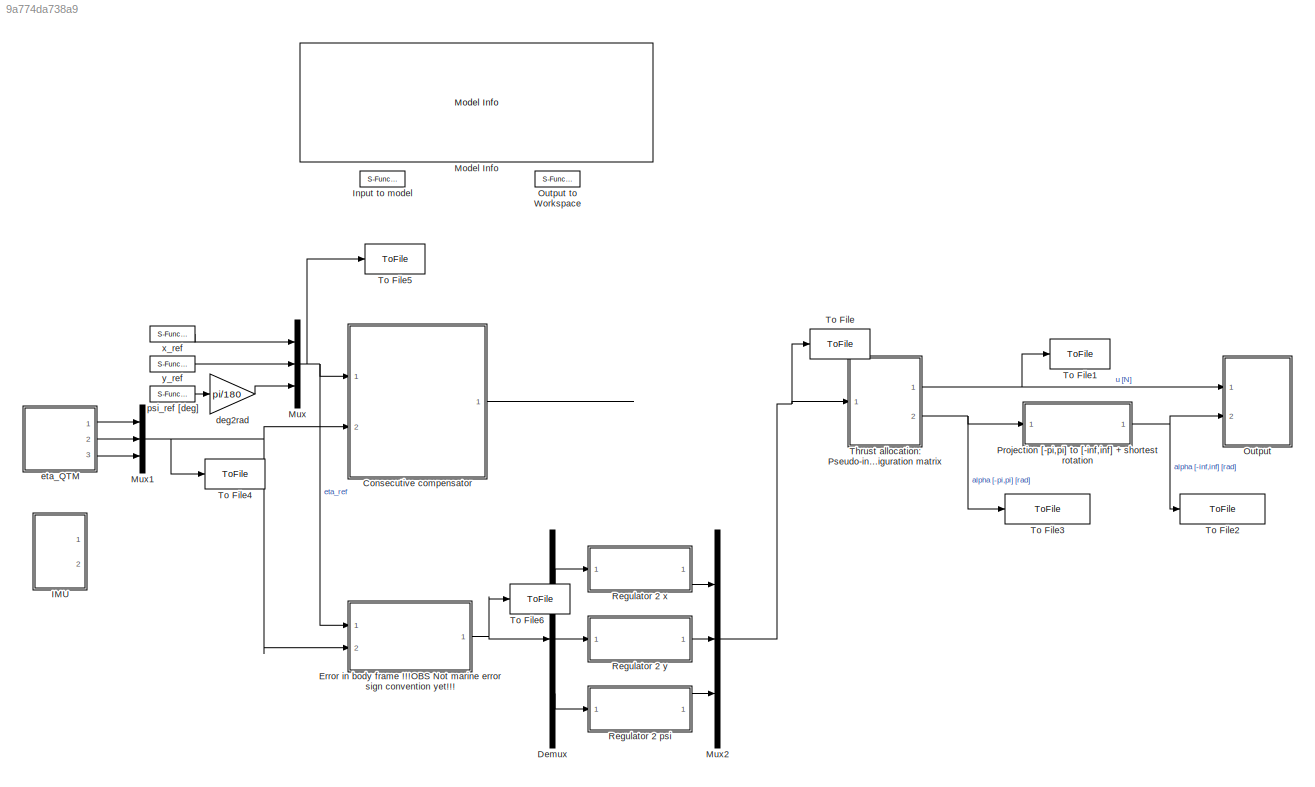
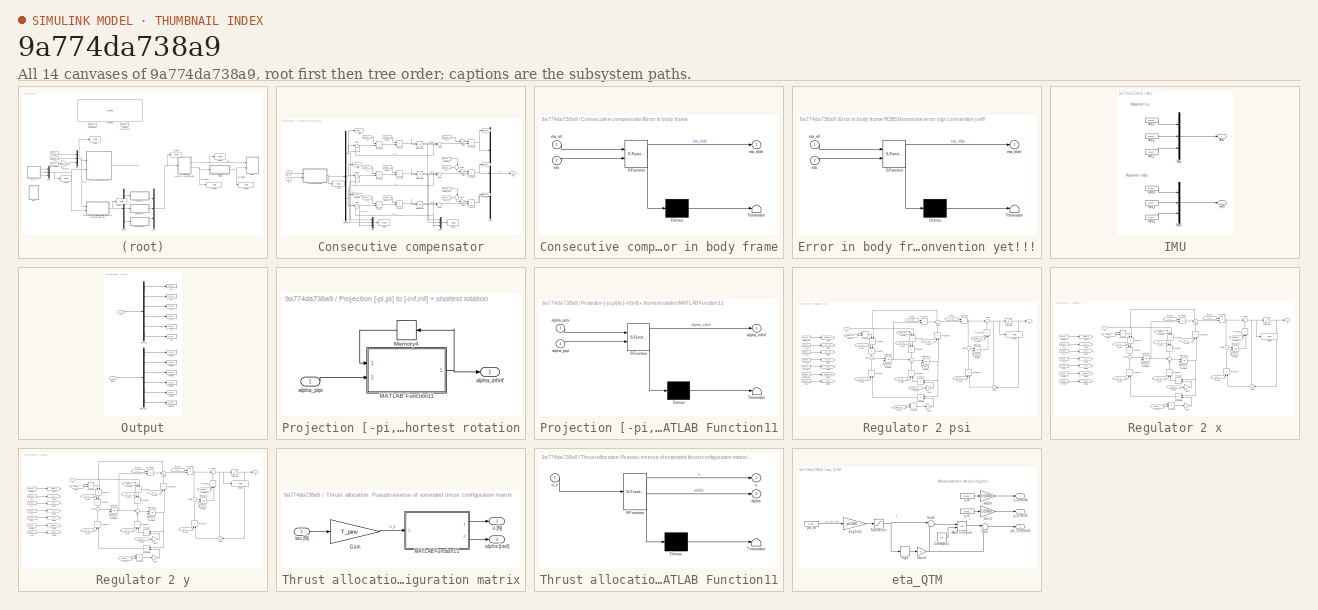
[diagram: thumbnail index - all 14 canvases of the model, root first then tree order]
MODEL slx_9a774da738a9
KIND model
CONFIG AbsTol = auto
CONFIG EnableMultiTasking = on
CONFIG FixedStep = 0.01
CONFIG MaxStep = auto
CONFIG MinStep = auto
CONFIG RelTol = 1e-3
CONFIG SampleTimeConstraint = Unconstrained
CONFIG Solver = ode4
CONFIG SolverName = ode4
CONFIG StartTime = 0.0
CONFIG StopTime = inf
BLOCK [SubSystem] Consecutive compensator
  Commented = on
  Ports = [2, 1]
  RequestExecContextInheritance = off
  Variant = off
BLOCK [Demux] Consecutive compensator/Demux
  DisplayOption = bar
  Outputs = 3
  Ports = [1, 3]
BLOCK [SubSystem] Consecutive compensator/Error in body frame
  ErrorFcn = Stateflow.Translate.translate
  PermitHierarchicalResolution = ExplicitOnly
  Ports = [2, 1]
  RequestExecContextInheritance = off
  SFBlockType = MATLAB Function
  TreatAsAtomicUnit = on
  Variant = off
BLOCK [Demux] Consecutive compensator/Error in body frame/ Demux 
  Outputs = 1
  Ports = [1, 1]
BLOCK [S-Function] Consecutive compensator/Error in body frame/ SFunction 
  EnableBusSupport = on
  FunctionName = sf_sfun
  PortCounts = [2 2]
  Ports = [2, 2]
  SFcnIsStateOwnerBlock = off
  SFunctionDeploymentMode = off
  Tag = Stateflow S-Function ctrl_custom 2
BLOCK [Terminator] Consecutive compensator/Error in body frame/ Terminator 
BLOCK [Inport] Consecutive compensator/Error in body frame/eta
  IconDisplay = Port number
  Port = 2
BLOCK [Inport] Consecutive compensator/Error in body frame/eta_ref
  IconDisplay = Port number
BLOCK [Outport] Consecutive compensator/Error in body frame/eta_tilde
  IconDisplay = Port number
BLOCK [Gain] Consecutive compensator/Gain1
  Gain = -1
  OutDataTypeStr = Inherit: Inherit via internal rule
  ParamDataTypeStr = Inherit: Inherit via internal rule
  SaturateOnIntegerOverflow = off
BLOCK [Gain] Consecutive compensator/Gain2
  Gain = -1
  OutDataTypeStr = Inherit: Inherit via internal rule
  ParamDataTypeStr = Inherit: Inherit via internal rule
  SaturateOnIntegerOverflow = off
BLOCK [Gain] Consecutive compensator/Gain3
  Gain = -1
  OutDataTypeStr = Inherit: Inherit via internal rule
  ParamDataTypeStr = Inherit: Inherit via internal rule
  SaturateOnIntegerOverflow = off
BLOCK [Integrator] Consecutive compensator/Integrator1
  Ports = [1, 1]
BLOCK [Integrator] Consecutive compensator/Integrator2
  Ports = [1, 1]
BLOCK [Integrator] Consecutive compensator/Integrator3
  Ports = [1, 1]
BLOCK [Mux] Consecutive compensator/Mux
  DisplayOption = bar
  Inputs = 3
  Ports = [3, 1]
BLOCK [Mux] Consecutive compensator/Mux1
  DisplayOption = bar
  Inputs = 3
  Ports = [3, 1]
BLOCK [Mux] Consecutive compensator/Mux2
  DisplayOption = bar
  Inputs = 3
  Ports = [3, 1]
BLOCK [S-Function] Consecutive compensator/N
  CopyFcn = NIVeriStand_MDL_functions('', 'IO_copy');
  DeleteFcn = NIVeriStand_MDL_functions('', 'IO_delete');
  EnableBusSupport = off
  FunctionName = NIVeriStandIO
  MoveFcn = set_param(gcb, 'Mask', 'on');
  Parameters = width dtype portnum stime stype btype
  Ports = [1]
  Priority = 6
  SFcnIsStateOwnerBlock = off
  SFunctionDeploymentMode = off
BLOCK [Product] Consecutive compensator/Product
  InputSameDT = off
  OutDataTypeStr = Inherit: Inherit via internal rule
  Ports = [2, 1]
  RndMeth = Floor
  SaturateOnIntegerOverflow = off
BLOCK [Product] Consecutive compensator/Product1
  InputSameDT = off
  OutDataTypeStr = Inherit: Inherit via internal rule
  Ports = [2, 1]
  RndMeth = Floor
  SaturateOnIntegerOverflow = off
BLOCK [Product] Consecutive compensator/Product2
  InputSameDT = off
  OutDataTypeStr = Inherit: Inherit via internal rule
  Ports = [2, 1]
  RndMeth = Floor
  SaturateOnIntegerOverflow = off
BLOCK [Product] Consecutive compensator/Product3
  InputSameDT = off
  OutDataTypeStr = Inherit: Inherit via internal rule
  Ports = [2, 1]
  RndMeth = Floor
  SaturateOnIntegerOverflow = off
BLOCK [Product] Consecutive compensator/Product4
  InputSameDT = off
  OutDataTypeStr = Inherit: Inherit via internal rule
  Ports = [2, 1]
  RndMeth = Floor
  SaturateOnIntegerOverflow = off
BLOCK [Product] Consecutive compensator/Product5
  InputSameDT = off
  OutDataTypeStr = Inherit: Inherit via internal rule
  Ports = [2, 1]
  RndMeth = Floor
  SaturateOnIntegerOverflow = off
BLOCK [Product] Consecutive compensator/Product6
  InputSameDT = off
  OutDataTypeStr = Inherit: Inherit via internal rule
  Ports = [2, 1]
  RndMeth = Floor
  SaturateOnIntegerOverflow = off
BLOCK [Product] Consecutive compensator/Product7
  InputSameDT = off
  OutDataTypeStr = Inherit: Inherit via internal rule
  Ports = [2, 1]
  RndMeth = Floor
  SaturateOnIntegerOverflow = off
BLOCK [Product] Consecutive compensator/Product8
  InputSameDT = off
  OutDataTypeStr = Inherit: Inherit via internal rule
  Ports = [2, 1]
  RndMeth = Floor
  SaturateOnIntegerOverflow = off
BLOCK [Sum] Consecutive compensator/Sum1
  IconShape = round
  InputSameDT = off
  Inputs = |+-
  OutDataTypeStr = Inherit: Inherit via internal rule
  Ports = [2, 1]
  SaturateOnIntegerOverflow = off
BLOCK [Sum] Consecutive compensator/Sum2
  IconShape = round
  InputSameDT = off
  Inputs = ++|
  OutDataTypeStr = Inherit: Inherit via internal rule
  Ports = [2, 1]
  SaturateOnIntegerOverflow = off
BLOCK [Sum] Consecutive compensator/Sum3
  IconShape = round
  InputSameDT = off
  Inputs = |+-
  OutDataTypeStr = Inherit: Inherit via internal rule
  Ports = [2, 1]
  SaturateOnIntegerOverflow = off
BLOCK [Sum] Consecutive compensator/Sum4
  IconShape = round
  InputSameDT = off
  Inputs = ++|
  OutDataTypeStr = Inherit: Inherit via internal rule
  Ports = [2, 1]
  SaturateOnIntegerOverflow = off
BLOCK [Sum] Consecutive compensator/Sum5
  IconShape = round
  InputSameDT = off
  Inputs = |+-
  OutDataTypeStr = Inherit: Inherit via internal rule
  Ports = [2, 1]
  SaturateOnIntegerOverflow = off
BLOCK [Sum] Consecutive compensator/Sum6
  IconShape = round
  InputSameDT = off
  Inputs = ++|
  OutDataTypeStr = Inherit: Inherit via internal rule
  Ports = [2, 1]
  SaturateOnIntegerOverflow = off
BLOCK [Sum] Consecutive compensator/Sum7
  IconShape = round
  InputSameDT = off
  Inputs = ++|
  OutDataTypeStr = Inherit: Inherit via internal rule
  Ports = [2, 1]
  SaturateOnIntegerOverflow = off
BLOCK [Sum] Consecutive compensator/Sum8
  IconShape = round
  InputSameDT = off
  Inputs = ++|
  OutDataTypeStr = Inherit: Inherit via internal rule
  Ports = [2, 1]
  SaturateOnIntegerOverflow = off
BLOCK [ToFile] Consecutive compensator/To File
  Filename = eta_tilde.mat
  Ports = [1]
BLOCK [ToFile] Consecutive compensator/To File1
  Filename = epsilon.mat
  Ports = [1]
BLOCK [ToFile] Consecutive compensator/To File2
  Filename = eta_hat.mat
  Ports = [1]
BLOCK [S-Function] Consecutive compensator/X
  CopyFcn = NIVeriStand_MDL_functions('', 'IO_copy');
  DeleteFcn = NIVeriStand_MDL_functions('', 'IO_delete');
  EnableBusSupport = off
  FunctionName = NIVeriStandIO
  MoveFcn = set_param(gcb, 'Mask', 'on');
  Parameters = width dtype portnum stime stype btype
  Ports = [1]
  Priority = 4
  SFcnIsStateOwnerBlock = off
  SFunctionDeploymentMode = off
BLOCK [S-Function] Consecutive compensator/Y
  CopyFcn = NIVeriStand_MDL_functions('', 'IO_copy');
  DeleteFcn = NIVeriStand_MDL_functions('', 'IO_delete');
  EnableBusSupport = off
  FunctionName = NIVeriStandIO
  MoveFcn = set_param(gcb, 'Mask', 'on');
  Parameters = width dtype portnum stime stype btype
  Ports = [1]
  Priority = 5
  SFcnIsStateOwnerBlock = off
  SFunctionDeploymentMode = off
BLOCK [Inport] Consecutive compensator/eta
  IconDisplay = Port number
  Port = 2
BLOCK [Inport] Consecutive compensator/eta_ref
  IconDisplay = Port number
BLOCK [S-Function] Consecutive compensator/k_psi
  CopyFcn = NIVeriStand_MDL_functions('', 'IO_copy');
  DeleteFcn = NIVeriStand_MDL_functions('', 'IO_delete');
  EnableBusSupport = off
  FunctionName = NIVeriStandIO
  MoveFcn = set_param(gcb, 'Mask', 'on');
  Parameters = width dtype portnum stime stype btype
  Ports = [0, 1]
  Priority = 3
  SFcnIsStateOwnerBlock = off
  SFunctionDeploymentMode = off
BLOCK [S-Function] Consecutive compensator/k_x
  CopyFcn = NIVeriStand_MDL_functions('', 'IO_copy');
  DeleteFcn = NIVeriStand_MDL_functions('', 'IO_delete');
  EnableBusSupport = off
  FunctionName = NIVeriStandIO
  MoveFcn = set_param(gcb, 'Mask', 'on');
  Parameters = width dtype portnum stime stype btype
  Ports = [0, 1]
  Priority = 1
  SFcnIsStateOwnerBlock = off
  SFunctionDeploymentMode = off
BLOCK [S-Function] Consecutive compensator/k_y
  CopyFcn = NIVeriStand_MDL_functions('', 'IO_copy');
  DeleteFcn = NIVeriStand_MDL_functions('', 'IO_delete');
  EnableBusSupport = off
  FunctionName = NIVeriStandIO
  MoveFcn = set_param(gcb, 'Mask', 'on');
  Parameters = width dtype portnum stime stype btype
  Ports = [0, 1]
  Priority = 2
  SFcnIsStateOwnerBlock = off
  SFunctionDeploymentMode = off
BLOCK [S-Function] Consecutive compensator/kappa_psi
  CopyFcn = NIVeriStand_MDL_functions('', 'IO_copy');
  DeleteFcn = NIVeriStand_MDL_functions('', 'IO_delete');
  EnableBusSupport = off
  FunctionName = NIVeriStandIO
  MoveFcn = set_param(gcb, 'Mask', 'on');
  Parameters = width dtype portnum stime stype btype
  Ports = [0, 1]
  Priority = 10
  SFcnIsStateOwnerBlock = off
  SFunctionDeploymentMode = off
BLOCK [S-Function] Consecutive compensator/kappa_y
  CopyFcn = NIVeriStand_MDL_functions('', 'IO_copy');
  DeleteFcn = NIVeriStand_MDL_functions('', 'IO_delete');
  EnableBusSupport = off
  FunctionName = NIVeriStandIO
  MoveFcn = set_param(gcb, 'Mask', 'on');
  Parameters = width dtype portnum stime stype btype
  Ports = [0, 1]
  Priority = 8
  SFcnIsStateOwnerBlock = off
  SFunctionDeploymentMode = off
BLOCK [S-Function] Consecutive compensator/mu_psi
  CopyFcn = NIVeriStand_MDL_functions('', 'IO_copy');
  DeleteFcn = NIVeriStand_MDL_functions('', 'IO_delete');
  EnableBusSupport = off
  FunctionName = NIVeriStandIO
  MoveFcn = set_param(gcb, 'Mask', 'on');
  Parameters = width dtype portnum stime stype btype
  Ports = [0, 1]
  Priority = 11
  SFcnIsStateOwnerBlock = off
  SFunctionDeploymentMode = off
BLOCK [S-Function] Consecutive compensator/mu_x
  CopyFcn = NIVeriStand_MDL_functions('', 'IO_copy');
  DeleteFcn = NIVeriStand_MDL_functions('', 'IO_delete');
  EnableBusSupport = off
  FunctionName = NIVeriStandIO
  MoveFcn = set_param(gcb, 'Mask', 'on');
  Parameters = width dtype portnum stime stype btype
  Ports = [0, 1]
  Priority = 7
  SFcnIsStateOwnerBlock = off
  SFunctionDeploymentMode = off
BLOCK [S-Function] Consecutive compensator/mu_y
  CopyFcn = NIVeriStand_MDL_functions('', 'IO_copy');
  DeleteFcn = NIVeriStand_MDL_functions('', 'IO_delete');
  EnableBusSupport = off
  FunctionName = NIVeriStandIO
  MoveFcn = set_param(gcb, 'Mask', 'on');
  Parameters = width dtype portnum stime stype btype
  Ports = [0, 1]
  Priority = 9
  SFcnIsStateOwnerBlock = off
  SFunctionDeploymentMode = off
BLOCK [S-Function] Consecutive compensator/psi_tilde
  CopyFcn = NIVeriStand_MDL_functions('', 'IO_copy');
  DeleteFcn = NIVeriStand_MDL_functions('', 'IO_delete');
  EnableBusSupport = off
  FunctionName = NIVeriStandIO
  MoveFcn = set_param(gcb, 'Mask', 'on');
  Parameters = width dtype portnum stime stype btype
  Ports = [1]
  Priority = 3
  SFcnIsStateOwnerBlock = off
  SFunctionDeploymentMode = off
BLOCK [S-Function] Consecutive compensator/sigma_psi
  CopyFcn = NIVeriStand_MDL_functions('', 'IO_copy');
  DeleteFcn = NIVeriStand_MDL_functions('', 'IO_delete');
  EnableBusSupport = off
  FunctionName = NIVeriStandIO
  MoveFcn = set_param(gcb, 'Mask', 'on');
  Parameters = width dtype portnum stime stype btype
  Ports = [0, 1]
  Priority = 4
  SFcnIsStateOwnerBlock = off
  SFunctionDeploymentMode = off
BLOCK [S-Function] Consecutive compensator/sigma_x
  CopyFcn = NIVeriStand_MDL_functions('', 'IO_copy');
  DeleteFcn = NIVeriStand_MDL_functions('', 'IO_delete');
  EnableBusSupport = off
  FunctionName = NIVeriStandIO
  MoveFcn = set_param(gcb, 'Mask', 'on');
  Parameters = width dtype portnum stime stype btype
  Ports = [0, 1]
  Priority = 5
  SFcnIsStateOwnerBlock = off
  SFunctionDeploymentMode = off
BLOCK [S-Function] Consecutive compensator/sigma_y
  CopyFcn = NIVeriStand_MDL_functions('', 'IO_copy');
  DeleteFcn = NIVeriStand_MDL_functions('', 'IO_delete');
  EnableBusSupport = off
  FunctionName = NIVeriStandIO
  MoveFcn = set_param(gcb, 'Mask', 'on');
  Parameters = width dtype portnum stime stype btype
  Ports = [0, 1]
  Priority = 6
  SFcnIsStateOwnerBlock = off
  SFunctionDeploymentMode = off
BLOCK [Outport] Consecutive compensator/tau
  IconDisplay = Port number
BLOCK [S-Function] Consecutive compensator/x_tilde
  CopyFcn = NIVeriStand_MDL_functions('', 'IO_copy');
  DeleteFcn = NIVeriStand_MDL_functions('', 'IO_delete');
  EnableBusSupport = off
  FunctionName = NIVeriStandIO
  MoveFcn = set_param(gcb, 'Mask', 'on');
  Parameters = width dtype portnum stime stype btype
  Ports = [1]
  Priority = 1
  SFcnIsStateOwnerBlock = off
  SFunctionDeploymentMode = off
BLOCK [S-Function] Consecutive compensator/y_tilde
  CopyFcn = NIVeriStand_MDL_functions('', 'IO_copy');
  DeleteFcn = NIVeriStand_MDL_functions('', 'IO_delete');
  EnableBusSupport = off
  FunctionName = NIVeriStandIO
  MoveFcn = set_param(gcb, 'Mask', 'on');
  Parameters = width dtype portnum stime stype btype
  Ports = [1]
  Priority = 2
  SFcnIsStateOwnerBlock = off
  SFunctionDeploymentMode = off
BLOCK [Demux] Demux
  DisplayOption = bar
  Outputs = 3
  Ports = [1, 3]
BLOCK [SubSystem] Error in body frame !!!OBS Not marine error sign convention yet!!!
  ErrorFcn = Stateflow.Translate.translate
  PermitHierarchicalResolution = ExplicitOnly
  Ports = [2, 1]
  RequestExecContextInheritance = off
  SFBlockType = MATLAB Function
  TreatAsAtomicUnit = on
  Variant = off
BLOCK [Demux] Error in body frame !!!OBS Not marine error sign convention yet!!!/ Demux 
  Outputs = 1
  Ports = [1, 1]
BLOCK [S-Function] Error in body frame !!!OBS Not marine error sign convention yet!!!/ SFunction 
  EnableBusSupport = on
  FunctionName = sf_sfun
  PortCounts = [2 2]
  Ports = [2, 2]
  SFcnIsStateOwnerBlock = off
  SFunctionDeploymentMode = off
  Tag = Stateflow S-Function ctrl_custom 4
BLOCK [Terminator] Error in body frame !!!OBS Not marine error sign convention yet!!!/ Terminator 
BLOCK [Inport] Error in body frame !!!OBS Not marine error sign convention yet!!!/eta
  IconDisplay = Port number
  Port = 2
BLOCK [Inport] Error in body frame !!!OBS Not marine error sign convention yet!!!/eta_ref
  IconDisplay = Port number
BLOCK [Outport] Error in body frame !!!OBS Not marine error sign convention yet!!!/eta_tilde
  IconDisplay = Port number
BLOCK [SubSystem] IMU
  Ports = [0, 2]
  RequestExecContextInheritance = off
  Variant = off
BLOCK [Outport] IMU/Acc
  IconDisplay = Port number
BLOCK [S-Function] IMU/Acc_x
  CopyFcn = NIVeriStand_MDL_functions('', 'IO_copy');
  DeleteFcn = NIVeriStand_MDL_functions('', 'IO_delete');
  EnableBusSupport = off
  FunctionName = NIVeriStandIO
  MoveFcn = set_param(gcb, 'Mask', 'on');
  Parameters = width dtype portnum stime stype btype
  Ports = [0, 1]
  Priority = 1
  SFcnIsStateOwnerBlock = off
  SFunctionDeploymentMode = off
BLOCK [S-Function] IMU/Acc_y
  CopyFcn = NIVeriStand_MDL_functions('', 'IO_copy');
  DeleteFcn = NIVeriStand_MDL_functions('', 'IO_delete');
  EnableBusSupport = off
  FunctionName = NIVeriStandIO
  MoveFcn = set_param(gcb, 'Mask', 'on');
  Parameters = width dtype portnum stime stype btype
  Ports = [0, 1]
  Priority = 2
  SFcnIsStateOwnerBlock = off
  SFunctionDeploymentMode = off
BLOCK [S-Function] IMU/Acc_z
  CopyFcn = NIVeriStand_MDL_functions('', 'IO_copy');
  DeleteFcn = NIVeriStand_MDL_functions('', 'IO_delete');
  EnableBusSupport = off
  FunctionName = NIVeriStandIO
  MoveFcn = set_param(gcb, 'Mask', 'on');
  Parameters = width dtype portnum stime stype btype
  Ports = [0, 1]
  Priority = 3
  SFcnIsStateOwnerBlock = off
  SFunctionDeploymentMode = off
BLOCK [Outport] IMU/Gyro
  IconDisplay = Port number
  Port = 2
BLOCK [S-Function] IMU/Gyro_x
  CopyFcn = NIVeriStand_MDL_functions('', 'IO_copy');
  DeleteFcn = NIVeriStand_MDL_functions('', 'IO_delete');
  EnableBusSupport = off
  FunctionName = NIVeriStandIO
  MoveFcn = set_param(gcb, 'Mask', 'on');
  Parameters = width dtype portnum stime stype btype
  Ports = [0, 1]
  Priority = 4
  SFcnIsStateOwnerBlock = off
  SFunctionDeploymentMode = off
BLOCK [S-Function] IMU/Gyro_y
  CopyFcn = NIVeriStand_MDL_functions('', 'IO_copy');
  DeleteFcn = NIVeriStand_MDL_functions('', 'IO_delete');
  EnableBusSupport = off
  FunctionName = NIVeriStandIO
  MoveFcn = set_param(gcb, 'Mask', 'on');
  Parameters = width dtype portnum stime stype btype
  Ports = [0, 1]
  Priority = 5
  SFcnIsStateOwnerBlock = off
  SFunctionDeploymentMode = off
BLOCK [S-Function] IMU/Gyro_z
  CopyFcn = NIVeriStand_MDL_functions('', 'IO_copy');
  DeleteFcn = NIVeriStand_MDL_functions('', 'IO_delete');
  EnableBusSupport = off
  FunctionName = NIVeriStandIO
  MoveFcn = set_param(gcb, 'Mask', 'on');
  Parameters = width dtype portnum stime stype btype
  Ports = [0, 1]
  Priority = 6
  SFcnIsStateOwnerBlock = off
  SFunctionDeploymentMode = off
BLOCK [Mux] IMU/Mux
  DisplayOption = bar
  Inputs = 3
  Ports = [3, 1]
BLOCK [Mux] IMU/Mux1
  DisplayOption = bar
  Inputs = 3
  Ports = [3, 1]
BLOCK [S-Function] Input to model
  CopyFcn = NIVeriStand_MDL_functions('', 'IO_copy');
  DeleteFcn = NIVeriStand_MDL_functions('', 'IO_delete');
  EnableBusSupport = off
  FunctionName = NIVeriStandIO
  MoveFcn = set_param(gcb, 'Mask', 'on');
  Parameters = width dtype portnum stime stype btype
  Ports = [0, 1]
  Priority = 1
  SFcnIsStateOwnerBlock = off
  SFunctionDeploymentMode = off
BLOCK [Reference] Model Info  REF=simulink/Model-Wide
Utilities/Model Info
  Ports = []
  SourceBlock = simulink/Model-Wide\nUtilities/Model Info
  SourceType = CMBlock
BLOCK [Mux] Mux
  DisplayOption = bar
  Inputs = 3
  Ports = [3, 1]
BLOCK [Mux] Mux1
  DisplayOption = bar
  Inputs = 3
  Ports = [3, 1]
BLOCK [Mux] Mux2
  DisplayOption = bar
  Inputs = 3
  Ports = [3, 1]
BLOCK [SubSystem] Output
  Ports = [2]
  RequestExecContextInheritance = off
  Variant = off
BLOCK [S-Function] Output to Workspace
  CopyFcn = NIVeriStand_MDL_functions('', 'IO_copy');
  DeleteFcn = NIVeriStand_MDL_functions('', 'IO_delete');
  EnableBusSupport = off
  FunctionName = NIVeriStandIO
  MoveFcn = set_param(gcb, 'Mask', 'on');
  Parameters = width dtype portnum stime stype btype
  Ports = [1]
  Priority = 1
  SFcnIsStateOwnerBlock = off
  SFunctionDeploymentMode = off
BLOCK [Demux] Output/Demux
  DisplayOption = bar
  Outputs = 6
  Ports = [1, 6]
BLOCK [Demux] Output/Demux1
  DisplayOption = bar
  Outputs = 6
  Ports = [1, 6]
BLOCK [Inport] Output/alpha
  IconDisplay = Port number
  Port = 2
BLOCK [S-Function] Output/alpha1
  CopyFcn = NIVeriStand_MDL_functions('', 'IO_copy');
  DeleteFcn = NIVeriStand_MDL_functions('', 'IO_delete');
  EnableBusSupport = off
  FunctionName = NIVeriStandIO
  MoveFcn = set_param(gcb, 'Mask', 'on');
  Parameters = width dtype portnum stime stype btype
  Ports = [1]
  Priority = 2
  SFcnIsStateOwnerBlock = off
  SFunctionDeploymentMode = off
BLOCK [S-Function] Output/alpha2
  CopyFcn = NIVeriStand_MDL_functions('', 'IO_copy');
  DeleteFcn = NIVeriStand_MDL_functions('', 'IO_delete');
  EnableBusSupport = off
  FunctionName = NIVeriStandIO
  MoveFcn = set_param(gcb, 'Mask', 'on');
  Parameters = width dtype portnum stime stype btype
  Ports = [1]
  Priority = 3
  SFcnIsStateOwnerBlock = off
  SFunctionDeploymentMode = off
BLOCK [S-Function] Output/alpha3
  CopyFcn = NIVeriStand_MDL_functions('', 'IO_copy');
  DeleteFcn = NIVeriStand_MDL_functions('', 'IO_delete');
  EnableBusSupport = off
  FunctionName = NIVeriStandIO
  MoveFcn = set_param(gcb, 'Mask', 'on');
  Parameters = width dtype portnum stime stype btype
  Ports = [1]
  Priority = 4
  SFcnIsStateOwnerBlock = off
  SFunctionDeploymentMode = off
BLOCK [S-Function] Output/alpha4
  CopyFcn = NIVeriStand_MDL_functions('', 'IO_copy');
  DeleteFcn = NIVeriStand_MDL_functions('', 'IO_delete');
  EnableBusSupport = off
  FunctionName = NIVeriStandIO
  MoveFcn = set_param(gcb, 'Mask', 'on');
  Parameters = width dtype portnum stime stype btype
  Ports = [1]
  Priority = 5
  SFcnIsStateOwnerBlock = off
  SFunctionDeploymentMode = off
BLOCK [S-Function] Output/alpha5
  CopyFcn = NIVeriStand_MDL_functions('', 'IO_copy');
  DeleteFcn = NIVeriStand_MDL_functions('', 'IO_delete');
  EnableBusSupport = off
  FunctionName = NIVeriStandIO
  MoveFcn = set_param(gcb, 'Mask', 'on');
  Parameters = width dtype portnum stime stype btype
  Ports = [1]
  Priority = 6
  SFcnIsStateOwnerBlock = off
  SFunctionDeploymentMode = off
BLOCK [S-Function] Output/alpha6
  CopyFcn = NIVeriStand_MDL_functions('', 'IO_copy');
  DeleteFcn = NIVeriStand_MDL_functions('', 'IO_delete');
  EnableBusSupport = off
  FunctionName = NIVeriStandIO
  MoveFcn = set_param(gcb, 'Mask', 'on');
  Parameters = width dtype portnum stime stype btype
  Ports = [1]
  Priority = 7
  SFcnIsStateOwnerBlock = off
  SFunctionDeploymentMode = off
BLOCK [Inport] Output/u
  IconDisplay = Port number
BLOCK [S-Function] Output/u1
  CopyFcn = NIVeriStand_MDL_functions('', 'IO_copy');
  DeleteFcn = NIVeriStand_MDL_functions('', 'IO_delete');
  EnableBusSupport = off
  FunctionName = NIVeriStandIO
  MoveFcn = set_param(gcb, 'Mask', 'on');
  Parameters = width dtype portnum stime stype btype
  Ports = [1]
  Priority = 8
  SFcnIsStateOwnerBlock = off
  SFunctionDeploymentMode = off
BLOCK [S-Function] Output/u2
  CopyFcn = NIVeriStand_MDL_functions('', 'IO_copy');
  DeleteFcn = NIVeriStand_MDL_functions('', 'IO_delete');
  EnableBusSupport = off
  FunctionName = NIVeriStandIO
  MoveFcn = set_param(gcb, 'Mask', 'on');
  Parameters = width dtype portnum stime stype btype
  Ports = [1]
  Priority = 9
  SFcnIsStateOwnerBlock = off
  SFunctionDeploymentMode = off
BLOCK [S-Function] Output/u3
  CopyFcn = NIVeriStand_MDL_functions('', 'IO_copy');
  DeleteFcn = NIVeriStand_MDL_functions('', 'IO_delete');
  EnableBusSupport = off
  FunctionName = NIVeriStandIO
  MoveFcn = set_param(gcb, 'Mask', 'on');
  Parameters = width dtype portnum stime stype btype
  Ports = [1]
  Priority = 10
  SFcnIsStateOwnerBlock = off
  SFunctionDeploymentMode = off
BLOCK [S-Function] Output/u4
  CopyFcn = NIVeriStand_MDL_functions('', 'IO_copy');
  DeleteFcn = NIVeriStand_MDL_functions('', 'IO_delete');
  EnableBusSupport = off
  FunctionName = NIVeriStandIO
  MoveFcn = set_param(gcb, 'Mask', 'on');
  Parameters = width dtype portnum stime stype btype
  Ports = [1]
  Priority = 11
  SFcnIsStateOwnerBlock = off
  SFunctionDeploymentMode = off
BLOCK [S-Function] Output/u5
  CopyFcn = NIVeriStand_MDL_functions('', 'IO_copy');
  DeleteFcn = NIVeriStand_MDL_functions('', 'IO_delete');
  EnableBusSupport = off
  FunctionName = NIVeriStandIO
  MoveFcn = set_param(gcb, 'Mask', 'on');
  Parameters = width dtype portnum stime stype btype
  Ports = [1]
  Priority = 12
  SFcnIsStateOwnerBlock = off
  SFunctionDeploymentMode = off
BLOCK [S-Function] Output/u6
  CopyFcn = NIVeriStand_MDL_functions('', 'IO_copy');
  DeleteFcn = NIVeriStand_MDL_functions('', 'IO_delete');
  EnableBusSupport = off
  FunctionName = NIVeriStandIO
  MoveFcn = set_param(gcb, 'Mask', 'on');
  Parameters = width dtype portnum stime stype btype
  Ports = [1]
  Priority = 13
  SFcnIsStateOwnerBlock = off
  SFunctionDeploymentMode = off
BLOCK [SubSystem] Projection [-pi,pi] to [-inf,inf] + shortest rotation
  Ports = [1, 1]
  RequestExecContextInheritance = off
  Variant = off
BLOCK [SubSystem] Projection [-pi,pi] to [-inf,inf] + shortest rotation/MATLAB Function11
  ErrorFcn = Stateflow.Translate.translate
  PermitHierarchicalResolution = ExplicitOnly
  Ports = [2, 1]
  RequestExecContextInheritance = off
  SFBlockType = MATLAB Function
  TreatAsAtomicUnit = on
  Variant = off
BLOCK [Demux] Projection [-pi,pi] to [-inf,inf] + shortest rotation/MATLAB Function11/ Demux 
  Outputs = 1
  Ports = [1, 1]
BLOCK [S-Function] Projection [-pi,pi] to [-inf,inf] + shortest rotation/MATLAB Function11/ SFunction 
  EnableBusSupport = on
  FunctionName = sf_sfun
  PortCounts = [2 2]
  Ports = [2, 2]
  SFcnIsStateOwnerBlock = off
  SFunctionDeploymentMode = off
  Tag = Stateflow S-Function ctrl_custom 1
BLOCK [Terminator] Projection [-pi,pi] to [-inf,inf] + shortest rotation/MATLAB Function11/ Terminator 
BLOCK [Outport] Projection [-pi,pi] to [-inf,inf] + shortest rotation/MATLAB Function11/alpha_infinf
  IconDisplay = Port number
BLOCK [Inport] Projection [-pi,pi] to [-inf,inf] + shortest rotation/MATLAB Function11/alpha_pipi
  IconDisplay = Port number
  Port = 2
BLOCK [Inport] Projection [-pi,pi] to [-inf,inf] + shortest rotation/MATLAB Function11/alpha_prev
  IconDisplay = Port number
BLOCK [Memory] Projection [-pi,pi] to [-inf,inf] + shortest rotation/Memory4
  X0 = [0 0 0 0 0 0]'
BLOCK [Outport] Projection [-pi,pi] to [-inf,inf] + shortest rotation/alpha_infinf
  IconDisplay = Port number
BLOCK [Inport] Projection [-pi,pi] to [-inf,inf] + shortest rotation/alpha_pipi
  IconDisplay = Port number
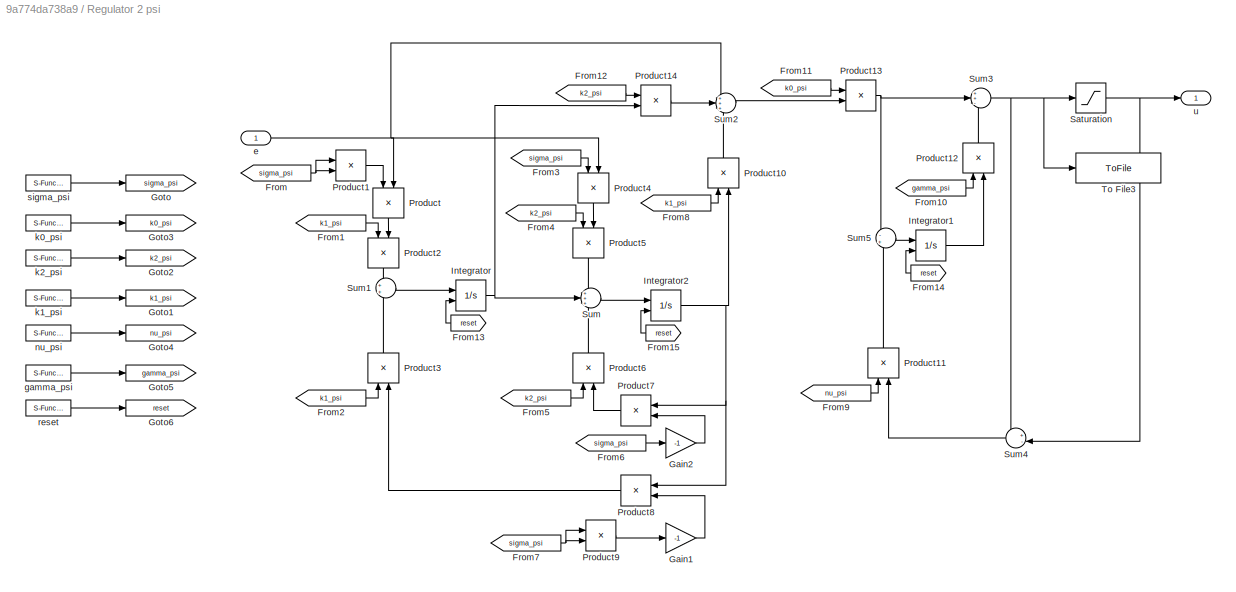
BLOCK [SubSystem] Regulator 2 psi
  Ports = [1, 1]
  RequestExecContextInheritance = off
  Variant = off
BLOCK [From] Regulator 2 psi/From
  GotoTag = sigma_psi
BLOCK [From] Regulator 2 psi/From1
  GotoTag = k1_psi
BLOCK [From] Regulator 2 psi/From10
  GotoTag = gamma_psi
BLOCK [From] Regulator 2 psi/From11
  GotoTag = k0_psi
BLOCK [From] Regulator 2 psi/From12
  GotoTag = k2_psi
BLOCK [From] Regulator 2 psi/From13
  GotoTag = reset
BLOCK [From] Regulator 2 psi/From14
  GotoTag = reset
BLOCK [From] Regulator 2 psi/From15
  GotoTag = reset
BLOCK [From] Regulator 2 psi/From2
  GotoTag = k1_psi
BLOCK [From] Regulator 2 psi/From3
  GotoTag = sigma_psi
BLOCK [From] Regulator 2 psi/From4
  GotoTag = k2_psi
BLOCK [From] Regulator 2 psi/From5
  GotoTag = k2_psi
BLOCK [From] Regulator 2 psi/From6
  GotoTag = sigma_psi
BLOCK [From] Regulator 2 psi/From7
  GotoTag = sigma_psi
BLOCK [From] Regulator 2 psi/From8
  GotoTag = k1_psi
BLOCK [From] Regulator 2 psi/From9
  GotoTag = nu_psi
BLOCK [Gain] Regulator 2 psi/Gain1
  Gain = -1
  OutDataTypeStr = Inherit: Inherit via internal rule
  ParamDataTypeStr = Inherit: Inherit via internal rule
  SaturateOnIntegerOverflow = off
BLOCK [Gain] Regulator 2 psi/Gain2
  Gain = -1
  OutDataTypeStr = Inherit: Inherit via internal rule
  ParamDataTypeStr = Inherit: Inherit via internal rule
  SaturateOnIntegerOverflow = off
BLOCK [Goto] Regulator 2 psi/Goto
  GotoTag = sigma_psi
BLOCK [Goto] Regulator 2 psi/Goto1
  GotoTag = k1_psi
BLOCK [Goto] Regulator 2 psi/Goto2
  GotoTag = k2_psi
BLOCK [Goto] Regulator 2 psi/Goto3
  GotoTag = k0_psi
BLOCK [Goto] Regulator 2 psi/Goto4
  GotoTag = nu_psi
BLOCK [Goto] Regulator 2 psi/Goto5
  GotoTag = gamma_psi
BLOCK [Goto] Regulator 2 psi/Goto6
  GotoTag = reset
BLOCK [Integrator] Regulator 2 psi/Integrator
  ExternalReset = either
  Ports = [2, 1]
BLOCK [Integrator] Regulator 2 psi/Integrator1
  ExternalReset = either
  Ports = [2, 1]
BLOCK [Integrator] Regulator 2 psi/Integrator2
  ExternalReset = either
  Ports = [2, 1]
BLOCK [Product] Regulator 2 psi/Product
  InputSameDT = off
  OutDataTypeStr = Inherit: Inherit via internal rule
  Ports = [2, 1]
  RndMeth = Floor
  SaturateOnIntegerOverflow = off
BLOCK [Product] Regulator 2 psi/Product1
  InputSameDT = off
  OutDataTypeStr = Inherit: Inherit via internal rule
  Ports = [2, 1]
  RndMeth = Floor
  SaturateOnIntegerOverflow = off
BLOCK [Product] Regulator 2 psi/Product10
  InputSameDT = off
  OutDataTypeStr = Inherit: Inherit via internal rule
  Ports = [2, 1]
  RndMeth = Floor
  SaturateOnIntegerOverflow = off
BLOCK [Product] Regulator 2 psi/Product11
  InputSameDT = off
  OutDataTypeStr = Inherit: Inherit via internal rule
  Ports = [2, 1]
  RndMeth = Floor
  SaturateOnIntegerOverflow = off
BLOCK [Product] Regulator 2 psi/Product12
  InputSameDT = off
  OutDataTypeStr = Inherit: Inherit via internal rule
  Ports = [2, 1]
  RndMeth = Floor
  SaturateOnIntegerOverflow = off
BLOCK [Product] Regulator 2 psi/Product13
  InputSameDT = off
  OutDataTypeStr = Inherit: Inherit via internal rule
  Ports = [2, 1]
  RndMeth = Floor
  SaturateOnIntegerOverflow = off
BLOCK [Product] Regulator 2 psi/Product14
  InputSameDT = off
  OutDataTypeStr = Inherit: Inherit via internal rule
  Ports = [2, 1]
  RndMeth = Floor
  SaturateOnIntegerOverflow = off
BLOCK [Product] Regulator 2 psi/Product2
  InputSameDT = off
  OutDataTypeStr = Inherit: Inherit via internal rule
  Ports = [2, 1]
  RndMeth = Floor
  SaturateOnIntegerOverflow = off
BLOCK [Product] Regulator 2 psi/Product3
  InputSameDT = off
  OutDataTypeStr = Inherit: Inherit via internal rule
  Ports = [2, 1]
  RndMeth = Floor
  SaturateOnIntegerOverflow = off
BLOCK [Product] Regulator 2 psi/Product4
  InputSameDT = off
  OutDataTypeStr = Inherit: Inherit via internal rule
  Ports = [2, 1]
  RndMeth = Floor
  SaturateOnIntegerOverflow = off
BLOCK [Product] Regulator 2 psi/Product5
  InputSameDT = off
  OutDataTypeStr = Inherit: Inherit via internal rule
  Ports = [2, 1]
  RndMeth = Floor
  SaturateOnIntegerOverflow = off
BLOCK [Product] Regulator 2 psi/Product6
  InputSameDT = off
  OutDataTypeStr = Inherit: Inherit via internal rule
  Ports = [2, 1]
  RndMeth = Floor
  SaturateOnIntegerOverflow = off
BLOCK [Product] Regulator 2 psi/Product7
  InputSameDT = off
  OutDataTypeStr = Inherit: Inherit via internal rule
  Ports = [2, 1]
  RndMeth = Floor
  SaturateOnIntegerOverflow = off
BLOCK [Product] Regulator 2 psi/Product8
  InputSameDT = off
  OutDataTypeStr = Inherit: Inherit via internal rule
  Ports = [2, 1]
  RndMeth = Floor
  SaturateOnIntegerOverflow = off
BLOCK [Product] Regulator 2 psi/Product9
  InputSameDT = off
  OutDataTypeStr = Inherit: Inherit via internal rule
  Ports = [2, 1]
  RndMeth = Floor
  SaturateOnIntegerOverflow = off
BLOCK [Saturate] Regulator 2 psi/Saturation
  InputPortMap = u0
  LowerLimit = -5
  Ports = [1, 1]
  UpperLimit = 5
BLOCK [Sum] Regulator 2 psi/Sum
  IconShape = round
  InputSameDT = off
  Inputs = +++
  OutDataTypeStr = Inherit: Inherit via internal rule
  Ports = [3, 1]
  SaturateOnIntegerOverflow = off
BLOCK [Sum] Regulator 2 psi/Sum1
  IconShape = round
  InputSameDT = off
  OutDataTypeStr = Inherit: Inherit via internal rule
  Ports = [2, 1]
  SaturateOnIntegerOverflow = off
BLOCK [Sum] Regulator 2 psi/Sum2
  IconShape = round
  InputSameDT = off
  Inputs = +++
  OutDataTypeStr = Inherit: Inherit via internal rule
  Ports = [3, 1]
  SaturateOnIntegerOverflow = off
BLOCK [Sum] Regulator 2 psi/Sum3
  IconShape = round
  InputSameDT = off
  Inputs = ++-
  OutDataTypeStr = Inherit: Inherit via internal rule
  Ports = [3, 1]
  SaturateOnIntegerOverflow = off
BLOCK [Sum] Regulator 2 psi/Sum4
  IconShape = round
  InputSameDT = off
  Inputs = +-|
  OutDataTypeStr = Inherit: Inherit via internal rule
  Ports = [2, 1]
  SaturateOnIntegerOverflow = off
BLOCK [Sum] Regulator 2 psi/Sum5
  IconShape = round
  InputSameDT = off
  Inputs = -+
  OutDataTypeStr = Inherit: Inherit via internal rule
  Ports = [2, 1]
  SaturateOnIntegerOverflow = off
BLOCK [ToFile] Regulator 2 psi/To File3
  Filename = N_unsaturated.mat
  Ports = [1]
BLOCK [Inport] Regulator 2 psi/e
  IconDisplay = Port number
BLOCK [S-Function] Regulator 2 psi/gamma_psi
  CopyFcn = NIVeriStand_MDL_functions('', 'IO_copy');
  DeleteFcn = NIVeriStand_MDL_functions('', 'IO_delete');
  EnableBusSupport = off
  FunctionName = NIVeriStandIO
  MoveFcn = set_param(gcb, 'Mask', 'on');
  Parameters = width dtype portnum stime stype btype
  Ports = [0, 1]
  Priority = 6
  SFcnIsStateOwnerBlock = off
  SFunctionDeploymentMode = off
BLOCK [S-Function] Regulator 2 psi/k0_psi
  CopyFcn = NIVeriStand_MDL_functions('', 'IO_copy');
  DeleteFcn = NIVeriStand_MDL_functions('', 'IO_delete');
  EnableBusSupport = off
  FunctionName = NIVeriStandIO
  MoveFcn = set_param(gcb, 'Mask', 'on');
  Parameters = width dtype portnum stime stype btype
  Ports = [0, 1]
  Priority = 4
  SFcnIsStateOwnerBlock = off
  SFunctionDeploymentMode = off
BLOCK [S-Function] Regulator 2 psi/k1_psi
  CopyFcn = NIVeriStand_MDL_functions('', 'IO_copy');
  DeleteFcn = NIVeriStand_MDL_functions('', 'IO_delete');
  EnableBusSupport = off
  FunctionName = NIVeriStandIO
  MoveFcn = set_param(gcb, 'Mask', 'on');
  Parameters = width dtype portnum stime stype btype
  Ports = [0, 1]
  Priority = 2
  SFcnIsStateOwnerBlock = off
  SFunctionDeploymentMode = off
BLOCK [S-Function] Regulator 2 psi/k2_psi
  CopyFcn = NIVeriStand_MDL_functions('', 'IO_copy');
  DeleteFcn = NIVeriStand_MDL_functions('', 'IO_delete');
  EnableBusSupport = off
  FunctionName = NIVeriStandIO
  MoveFcn = set_param(gcb, 'Mask', 'on');
  Parameters = width dtype portnum stime stype btype
  Ports = [0, 1]
  Priority = 3
  SFcnIsStateOwnerBlock = off
  SFunctionDeploymentMode = off
BLOCK [S-Function] Regulator 2 psi/nu_psi
  CopyFcn = NIVeriStand_MDL_functions('', 'IO_copy');
  DeleteFcn = NIVeriStand_MDL_functions('', 'IO_delete');
  EnableBusSupport = off
  FunctionName = NIVeriStandIO
  MoveFcn = set_param(gcb, 'Mask', 'on');
  Parameters = width dtype portnum stime stype btype
  Ports = [0, 1]
  Priority = 5
  SFcnIsStateOwnerBlock = off
  SFunctionDeploymentMode = off
BLOCK [S-Function] Regulator 2 psi/reset
  CopyFcn = NIVeriStand_MDL_functions('', 'IO_copy');
  DeleteFcn = NIVeriStand_MDL_functions('', 'IO_delete');
  EnableBusSupport = off
  FunctionName = NIVeriStandIO
  MoveFcn = set_param(gcb, 'Mask', 'on');
  Parameters = width dtype portnum stime stype btype
  Ports = [0, 1]
  Priority = 7
  SFcnIsStateOwnerBlock = off
  SFunctionDeploymentMode = off
BLOCK [S-Function] Regulator 2 psi/sigma_psi
  CopyFcn = NIVeriStand_MDL_functions('', 'IO_copy');
  DeleteFcn = NIVeriStand_MDL_functions('', 'IO_delete');
  EnableBusSupport = off
  FunctionName = NIVeriStandIO
  MoveFcn = set_param(gcb, 'Mask', 'on');
  Parameters = width dtype portnum stime stype btype
  Ports = [0, 1]
  Priority = 1
  SFcnIsStateOwnerBlock = off
  SFunctionDeploymentMode = off
BLOCK [Outport] Regulator 2 psi/u
  IconDisplay = Port number
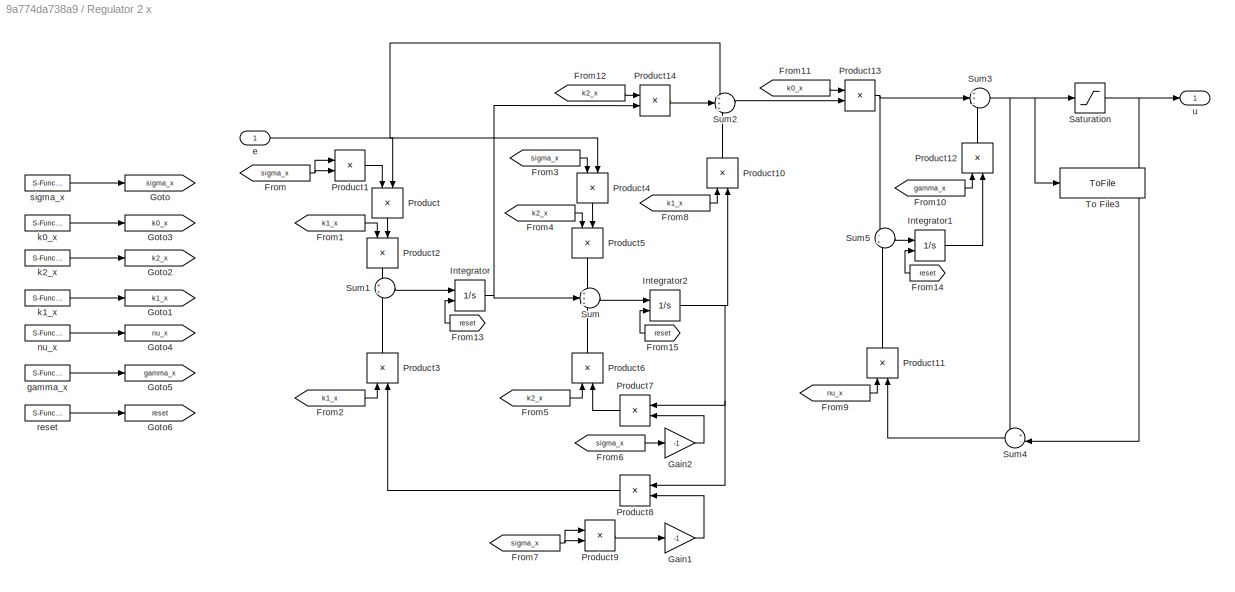
BLOCK [SubSystem] Regulator 2 x
  Ports = [1, 1]
  RequestExecContextInheritance = off
  Variant = off
BLOCK [From] Regulator 2 x/From
  GotoTag = sigma_x
BLOCK [From] Regulator 2 x/From1
  GotoTag = k1_x
BLOCK [From] Regulator 2 x/From10
  GotoTag = gamma_x
BLOCK [From] Regulator 2 x/From11
  GotoTag = k0_x
BLOCK [From] Regulator 2 x/From12
  GotoTag = k2_x
BLOCK [From] Regulator 2 x/From13
  GotoTag = reset
BLOCK [From] Regulator 2 x/From14
  GotoTag = reset
BLOCK [From] Regulator 2 x/From15
  GotoTag = reset
BLOCK [From] Regulator 2 x/From2
  GotoTag = k1_x
BLOCK [From] Regulator 2 x/From3
  GotoTag = sigma_x
BLOCK [From] Regulator 2 x/From4
  GotoTag = k2_x
BLOCK [From] Regulator 2 x/From5
  GotoTag = k2_x
BLOCK [From] Regulator 2 x/From6
  GotoTag = sigma_x
BLOCK [From] Regulator 2 x/From7
  GotoTag = sigma_x
BLOCK [From] Regulator 2 x/From8
  GotoTag = k1_x
BLOCK [From] Regulator 2 x/From9
  GotoTag = nu_x
BLOCK [Gain] Regulator 2 x/Gain1
  Gain = -1
  OutDataTypeStr = Inherit: Inherit via internal rule
  ParamDataTypeStr = Inherit: Inherit via internal rule
  SaturateOnIntegerOverflow = off
BLOCK [Gain] Regulator 2 x/Gain2
  Gain = -1
  OutDataTypeStr = Inherit: Inherit via internal rule
  ParamDataTypeStr = Inherit: Inherit via internal rule
  SaturateOnIntegerOverflow = off
BLOCK [Goto] Regulator 2 x/Goto
  GotoTag = sigma_x
BLOCK [Goto] Regulator 2 x/Goto1
  GotoTag = k1_x
BLOCK [Goto] Regulator 2 x/Goto2
  GotoTag = k2_x
BLOCK [Goto] Regulator 2 x/Goto3
  GotoTag = k0_x
BLOCK [Goto] Regulator 2 x/Goto4
  GotoTag = nu_x
BLOCK [Goto] Regulator 2 x/Goto5
  GotoTag = gamma_x
BLOCK [Goto] Regulator 2 x/Goto6
  GotoTag = reset
BLOCK [Integrator] Regulator 2 x/Integrator
  ExternalReset = either
  Ports = [2, 1]
BLOCK [Integrator] Regulator 2 x/Integrator1
  ExternalReset = either
  Ports = [2, 1]
BLOCK [Integrator] Regulator 2 x/Integrator2
  ExternalReset = either
  Ports = [2, 1]
BLOCK [Product] Regulator 2 x/Product
  InputSameDT = off
  OutDataTypeStr = Inherit: Inherit via internal rule
  Ports = [2, 1]
  RndMeth = Floor
  SaturateOnIntegerOverflow = off
BLOCK [Product] Regulator 2 x/Product1
  InputSameDT = off
  OutDataTypeStr = Inherit: Inherit via internal rule
  Ports = [2, 1]
  RndMeth = Floor
  SaturateOnIntegerOverflow = off
BLOCK [Product] Regulator 2 x/Product10
  InputSameDT = off
  OutDataTypeStr = Inherit: Inherit via internal rule
  Ports = [2, 1]
  RndMeth = Floor
  SaturateOnIntegerOverflow = off
BLOCK [Product] Regulator 2 x/Product11
  InputSameDT = off
  OutDataTypeStr = Inherit: Inherit via internal rule
  Ports = [2, 1]
  RndMeth = Floor
  SaturateOnIntegerOverflow = off
BLOCK [Product] Regulator 2 x/Product12
  InputSameDT = off
  OutDataTypeStr = Inherit: Inherit via internal rule
  Ports = [2, 1]
  RndMeth = Floor
  SaturateOnIntegerOverflow = off
BLOCK [Product] Regulator 2 x/Product13
  InputSameDT = off
  OutDataTypeStr = Inherit: Inherit via internal rule
  Ports = [2, 1]
  RndMeth = Floor
  SaturateOnIntegerOverflow = off
BLOCK [Product] Regulator 2 x/Product14
  InputSameDT = off
  OutDataTypeStr = Inherit: Inherit via internal rule
  Ports = [2, 1]
  RndMeth = Floor
  SaturateOnIntegerOverflow = off
BLOCK [Product] Regulator 2 x/Product2
  InputSameDT = off
  OutDataTypeStr = Inherit: Inherit via internal rule
  Ports = [2, 1]
  RndMeth = Floor
  SaturateOnIntegerOverflow = off
BLOCK [Product] Regulator 2 x/Product3
  InputSameDT = off
  OutDataTypeStr = Inherit: Inherit via internal rule
  Ports = [2, 1]
  RndMeth = Floor
  SaturateOnIntegerOverflow = off
BLOCK [Product] Regulator 2 x/Product4
  InputSameDT = off
  OutDataTypeStr = Inherit: Inherit via internal rule
  Ports = [2, 1]
  RndMeth = Floor
  SaturateOnIntegerOverflow = off
BLOCK [Product] Regulator 2 x/Product5
  InputSameDT = off
  OutDataTypeStr = Inherit: Inherit via internal rule
  Ports = [2, 1]
  RndMeth = Floor
  SaturateOnIntegerOverflow = off
BLOCK [Product] Regulator 2 x/Product6
  InputSameDT = off
  OutDataTypeStr = Inherit: Inherit via internal rule
  Ports = [2, 1]
  RndMeth = Floor
  SaturateOnIntegerOverflow = off
BLOCK [Product] Regulator 2 x/Product7
  InputSameDT = off
  OutDataTypeStr = Inherit: Inherit via internal rule
  Ports = [2, 1]
  RndMeth = Floor
  SaturateOnIntegerOverflow = off
BLOCK [Product] Regulator 2 x/Product8
  InputSameDT = off
  OutDataTypeStr = Inherit: Inherit via internal rule
  Ports = [2, 1]
  RndMeth = Floor
  SaturateOnIntegerOverflow = off
BLOCK [Product] Regulator 2 x/Product9
  InputSameDT = off
  OutDataTypeStr = Inherit: Inherit via internal rule
  Ports = [2, 1]
  RndMeth = Floor
  SaturateOnIntegerOverflow = off
BLOCK [Saturate] Regulator 2 x/Saturation
  InputPortMap = u0
  LowerLimit = -5
  Ports = [1, 1]
  UpperLimit = 5
BLOCK [Sum] Regulator 2 x/Sum
  IconShape = round
  InputSameDT = off
  Inputs = +++
  OutDataTypeStr = Inherit: Inherit via internal rule
  Ports = [3, 1]
  SaturateOnIntegerOverflow = off
BLOCK [Sum] Regulator 2 x/Sum1
  IconShape = round
  InputSameDT = off
  OutDataTypeStr = Inherit: Inherit via internal rule
  Ports = [2, 1]
  SaturateOnIntegerOverflow = off
BLOCK [Sum] Regulator 2 x/Sum2
  IconShape = round
  InputSameDT = off
  Inputs = +++
  OutDataTypeStr = Inherit: Inherit via internal rule
  Ports = [3, 1]
  SaturateOnIntegerOverflow = off
BLOCK [Sum] Regulator 2 x/Sum3
  IconShape = round
  InputSameDT = off
  Inputs = ++-
  OutDataTypeStr = Inherit: Inherit via internal rule
  Ports = [3, 1]
  SaturateOnIntegerOverflow = off
BLOCK [Sum] Regulator 2 x/Sum4
  IconShape = round
  InputSameDT = off
  Inputs = +-|
  OutDataTypeStr = Inherit: Inherit via internal rule
  Ports = [2, 1]
  SaturateOnIntegerOverflow = off
BLOCK [Sum] Regulator 2 x/Sum5
  IconShape = round
  InputSameDT = off
  Inputs = -+
  OutDataTypeStr = Inherit: Inherit via internal rule
  Ports = [2, 1]
  SaturateOnIntegerOverflow = off
BLOCK [ToFile] Regulator 2 x/To File3
  Filename = X_unsaturated.mat
  Ports = [1]
BLOCK [Inport] Regulator 2 x/e
  IconDisplay = Port number
BLOCK [S-Function] Regulator 2 x/gamma_x
  CopyFcn = NIVeriStand_MDL_functions('', 'IO_copy');
  DeleteFcn = NIVeriStand_MDL_functions('', 'IO_delete');
  EnableBusSupport = off
  FunctionName = NIVeriStandIO
  MoveFcn = set_param(gcb, 'Mask', 'on');
  Parameters = width dtype portnum stime stype btype
  Ports = [0, 1]
  Priority = 6
  SFcnIsStateOwnerBlock = off
  SFunctionDeploymentMode = off
BLOCK [S-Function] Regulator 2 x/k0_x
  CopyFcn = NIVeriStand_MDL_functions('', 'IO_copy');
  DeleteFcn = NIVeriStand_MDL_functions('', 'IO_delete');
  EnableBusSupport = off
  FunctionName = NIVeriStandIO
  MoveFcn = set_param(gcb, 'Mask', 'on');
  Parameters = width dtype portnum stime stype btype
  Ports = [0, 1]
  Priority = 4
  SFcnIsStateOwnerBlock = off
  SFunctionDeploymentMode = off
BLOCK [S-Function] Regulator 2 x/k1_x
  CopyFcn = NIVeriStand_MDL_functions('', 'IO_copy');
  DeleteFcn = NIVeriStand_MDL_functions('', 'IO_delete');
  EnableBusSupport = off
  FunctionName = NIVeriStandIO
  MoveFcn = set_param(gcb, 'Mask', 'on');
  Parameters = width dtype portnum stime stype btype
  Ports = [0, 1]
  Priority = 2
  SFcnIsStateOwnerBlock = off
  SFunctionDeploymentMode = off
BLOCK [S-Function] Regulator 2 x/k2_x
  CopyFcn = NIVeriStand_MDL_functions('', 'IO_copy');
  DeleteFcn = NIVeriStand_MDL_functions('', 'IO_delete');
  EnableBusSupport = off
  FunctionName = NIVeriStandIO
  MoveFcn = set_param(gcb, 'Mask', 'on');
  Parameters = width dtype portnum stime stype btype
  Ports = [0, 1]
  Priority = 3
  SFcnIsStateOwnerBlock = off
  SFunctionDeploymentMode = off
BLOCK [S-Function] Regulator 2 x/nu_x
  CopyFcn = NIVeriStand_MDL_functions('', 'IO_copy');
  DeleteFcn = NIVeriStand_MDL_functions('', 'IO_delete');
  EnableBusSupport = off
  FunctionName = NIVeriStandIO
  MoveFcn = set_param(gcb, 'Mask', 'on');
  Parameters = width dtype portnum stime stype btype
  Ports = [0, 1]
  Priority = 5
  SFcnIsStateOwnerBlock = off
  SFunctionDeploymentMode = off
BLOCK [S-Function] Regulator 2 x/reset
  CopyFcn = NIVeriStand_MDL_functions('', 'IO_copy');
  DeleteFcn = NIVeriStand_MDL_functions('', 'IO_delete');
  EnableBusSupport = off
  FunctionName = NIVeriStandIO
  MoveFcn = set_param(gcb, 'Mask', 'on');
  Parameters = width dtype portnum stime stype btype
  Ports = [0, 1]
  Priority = 7
  SFcnIsStateOwnerBlock = off
  SFunctionDeploymentMode = off
BLOCK [S-Function] Regulator 2 x/sigma_x
  CopyFcn = NIVeriStand_MDL_functions('', 'IO_copy');
  DeleteFcn = NIVeriStand_MDL_functions('', 'IO_delete');
  EnableBusSupport = off
  FunctionName = NIVeriStandIO
  MoveFcn = set_param(gcb, 'Mask', 'on');
  Parameters = width dtype portnum stime stype btype
  Ports = [0, 1]
  Priority = 1
  SFcnIsStateOwnerBlock = off
  SFunctionDeploymentMode = off
BLOCK [Outport] Regulator 2 x/u
  IconDisplay = Port number
BLOCK [SubSystem] Regulator 2 y
  Ports = [1, 1]
  RequestExecContextInheritance = off
  Variant = off
BLOCK [From] Regulator 2 y/From
  GotoTag = sigma_y
BLOCK [From] Regulator 2 y/From1
  GotoTag = k1_y
BLOCK [From] Regulator 2 y/From10
  GotoTag = gamma_y
BLOCK [From] Regulator 2 y/From11
  GotoTag = k0_y
BLOCK [From] Regulator 2 y/From12
  GotoTag = k2_y
BLOCK [From] Regulator 2 y/From13
  GotoTag = reset
BLOCK [From] Regulator 2 y/From14
  GotoTag = reset
BLOCK [From] Regulator 2 y/From15
  GotoTag = reset
BLOCK [From] Regulator 2 y/From2
  GotoTag = k1_y
BLOCK [From] Regulator 2 y/From3
  GotoTag = sigma_y
BLOCK [From] Regulator 2 y/From4
  GotoTag = k2_y
BLOCK [From] Regulator 2 y/From5
  GotoTag = k2_y
BLOCK [From] Regulator 2 y/From6
  GotoTag = sigma_y
BLOCK [From] Regulator 2 y/From7
  GotoTag = sigma_y
BLOCK [From] Regulator 2 y/From8
  GotoTag = k1_y
BLOCK [From] Regulator 2 y/From9
  GotoTag = nu_y
BLOCK [Gain] Regulator 2 y/Gain1
  Gain = -1
  OutDataTypeStr = Inherit: Inherit via internal rule
  ParamDataTypeStr = Inherit: Inherit via internal rule
  SaturateOnIntegerOverflow = off
BLOCK [Gain] Regulator 2 y/Gain2
  Gain = -1
  OutDataTypeStr = Inherit: Inherit via internal rule
  ParamDataTypeStr = Inherit: Inherit via internal rule
  SaturateOnIntegerOverflow = off
BLOCK [Goto] Regulator 2 y/Goto
  GotoTag = sigma_y
BLOCK [Goto] Regulator 2 y/Goto1
  GotoTag = k1_y
BLOCK [Goto] Regulator 2 y/Goto2
  GotoTag = k2_y
BLOCK [Goto] Regulator 2 y/Goto3
  GotoTag = k0_y
BLOCK [Goto] Regulator 2 y/Goto4
  GotoTag = nu_y
BLOCK [Goto] Regulator 2 y/Goto5
  GotoTag = gamma_y
BLOCK [Goto] Regulator 2 y/Goto6
  GotoTag = reset
BLOCK [Integrator] Regulator 2 y/Integrator
  ExternalReset = either
  Ports = [2, 1]
BLOCK [Integrator] Regulator 2 y/Integrator1
  ExternalReset = either
  Ports = [2, 1]
BLOCK [Integrator] Regulator 2 y/Integrator2
  ExternalReset = either
  Ports = [2, 1]
BLOCK [Product] Regulator 2 y/Product
  InputSameDT = off
  OutDataTypeStr = Inherit: Inherit via internal rule
  Ports = [2, 1]
  RndMeth = Floor
  SaturateOnIntegerOverflow = off
BLOCK [Product] Regulator 2 y/Product1
  InputSameDT = off
  OutDataTypeStr = Inherit: Inherit via internal rule
  Ports = [2, 1]
  RndMeth = Floor
  SaturateOnIntegerOverflow = off
BLOCK [Product] Regulator 2 y/Product10
  InputSameDT = off
  OutDataTypeStr = Inherit: Inherit via internal rule
  Ports = [2, 1]
  RndMeth = Floor
  SaturateOnIntegerOverflow = off
BLOCK [Product] Regulator 2 y/Product11
  InputSameDT = off
  OutDataTypeStr = Inherit: Inherit via internal rule
  Ports = [2, 1]
  RndMeth = Floor
  SaturateOnIntegerOverflow = off
BLOCK [Product] Regulator 2 y/Product12
  InputSameDT = off
  OutDataTypeStr = Inherit: Inherit via internal rule
  Ports = [2, 1]
  RndMeth = Floor
  SaturateOnIntegerOverflow = off
BLOCK [Product] Regulator 2 y/Product13
  InputSameDT = off
  OutDataTypeStr = Inherit: Inherit via internal rule
  Ports = [2, 1]
  RndMeth = Floor
  SaturateOnIntegerOverflow = off
BLOCK [Product] Regulator 2 y/Product14
  InputSameDT = off
  OutDataTypeStr = Inherit: Inherit via internal rule
  Ports = [2, 1]
  RndMeth = Floor
  SaturateOnIntegerOverflow = off
BLOCK [Product] Regulator 2 y/Product2
  InputSameDT = off
  OutDataTypeStr = Inherit: Inherit via internal rule
  Ports = [2, 1]
  RndMeth = Floor
  SaturateOnIntegerOverflow = off
BLOCK [Product] Regulator 2 y/Product3
  InputSameDT = off
  OutDataTypeStr = Inherit: Inherit via internal rule
  Ports = [2, 1]
  RndMeth = Floor
  SaturateOnIntegerOverflow = off
BLOCK [Product] Regulator 2 y/Product4
  InputSameDT = off
  OutDataTypeStr = Inherit: Inherit via internal rule
  Ports = [2, 1]
  RndMeth = Floor
  SaturateOnIntegerOverflow = off
BLOCK [Product] Regulator 2 y/Product5
  InputSameDT = off
  OutDataTypeStr = Inherit: Inherit via internal rule
  Ports = [2, 1]
  RndMeth = Floor
  SaturateOnIntegerOverflow = off
BLOCK [Product] Regulator 2 y/Product6
  InputSameDT = off
  OutDataTypeStr = Inherit: Inherit via internal rule
  Ports = [2, 1]
  RndMeth = Floor
  SaturateOnIntegerOverflow = off
BLOCK [Product] Regulator 2 y/Product7
  InputSameDT = off
  OutDataTypeStr = Inherit: Inherit via internal rule
  Ports = [2, 1]
  RndMeth = Floor
  SaturateOnIntegerOverflow = off
BLOCK [Product] Regulator 2 y/Product8
  InputSameDT = off
  OutDataTypeStr = Inherit: Inherit via internal rule
  Ports = [2, 1]
  RndMeth = Floor
  SaturateOnIntegerOverflow = off
BLOCK [Product] Regulator 2 y/Product9
  InputSameDT = off
  OutDataTypeStr = Inherit: Inherit via internal rule
  Ports = [2, 1]
  RndMeth = Floor
  SaturateOnIntegerOverflow = off
BLOCK [Saturate] Regulator 2 y/Saturation
  InputPortMap = u0
  LowerLimit = -5
  Ports = [1, 1]
  UpperLimit = 5
BLOCK [Sum] Regulator 2 y/Sum
  IconShape = round
  InputSameDT = off
  Inputs = +++
  OutDataTypeStr = Inherit: Inherit via internal rule
  Ports = [3, 1]
  SaturateOnIntegerOverflow = off
BLOCK [Sum] Regulator 2 y/Sum1
  IconShape = round
  InputSameDT = off
  OutDataTypeStr = Inherit: Inherit via internal rule
  Ports = [2, 1]
  SaturateOnIntegerOverflow = off
BLOCK [Sum] Regulator 2 y/Sum2
  IconShape = round
  InputSameDT = off
  Inputs = +++
  OutDataTypeStr = Inherit: Inherit via internal rule
  Ports = [3, 1]
  SaturateOnIntegerOverflow = off
BLOCK [Sum] Regulator 2 y/Sum3
  IconShape = round
  InputSameDT = off
  Inputs = ++-
  OutDataTypeStr = Inherit: Inherit via internal rule
  Ports = [3, 1]
  SaturateOnIntegerOverflow = off
BLOCK [Sum] Regulator 2 y/Sum4
  IconShape = round
  InputSameDT = off
  Inputs = +-|
  OutDataTypeStr = Inherit: Inherit via internal rule
  Ports = [2, 1]
  SaturateOnIntegerOverflow = off
BLOCK [Sum] Regulator 2 y/Sum5
  IconShape = round
  InputSameDT = off
  Inputs = -+
  OutDataTypeStr = Inherit: Inherit via internal rule
  Ports = [2, 1]
  SaturateOnIntegerOverflow = off
BLOCK [ToFile] Regulator 2 y/To File3
  Filename = Y_unsaturated.mat
  Ports = [1]
BLOCK [Inport] Regulator 2 y/e
  IconDisplay = Port number
BLOCK [S-Function] Regulator 2 y/gamma_y
  CopyFcn = NIVeriStand_MDL_functions('', 'IO_copy');
  DeleteFcn = NIVeriStand_MDL_functions('', 'IO_delete');
  EnableBusSupport = off
  FunctionName = NIVeriStandIO
  MoveFcn = set_param(gcb, 'Mask', 'on');
  Parameters = width dtype portnum stime stype btype
  Ports = [0, 1]
  Priority = 6
  SFcnIsStateOwnerBlock = off
  SFunctionDeploymentMode = off
BLOCK [S-Function] Regulator 2 y/k0_y
  CopyFcn = NIVeriStand_MDL_functions('', 'IO_copy');
  DeleteFcn = NIVeriStand_MDL_functions('', 'IO_delete');
  EnableBusSupport = off
  FunctionName = NIVeriStandIO
  MoveFcn = set_param(gcb, 'Mask', 'on');
  Parameters = width dtype portnum stime stype btype
  Ports = [0, 1]
  Priority = 4
  SFcnIsStateOwnerBlock = off
  SFunctionDeploymentMode = off
BLOCK [S-Function] Regulator 2 y/k1_y
  CopyFcn = NIVeriStand_MDL_functions('', 'IO_copy');
  DeleteFcn = NIVeriStand_MDL_functions('', 'IO_delete');
  EnableBusSupport = off
  FunctionName = NIVeriStandIO
  MoveFcn = set_param(gcb, 'Mask', 'on');
  Parameters = width dtype portnum stime stype btype
  Ports = [0, 1]
  Priority = 2
  SFcnIsStateOwnerBlock = off
  SFunctionDeploymentMode = off
BLOCK [S-Function] Regulator 2 y/k2_y
  CopyFcn = NIVeriStand_MDL_functions('', 'IO_copy');
  DeleteFcn = NIVeriStand_MDL_functions('', 'IO_delete');
  EnableBusSupport = off
  FunctionName = NIVeriStandIO
  MoveFcn = set_param(gcb, 'Mask', 'on');
  Parameters = width dtype portnum stime stype btype
  Ports = [0, 1]
  Priority = 3
  SFcnIsStateOwnerBlock = off
  SFunctionDeploymentMode = off
BLOCK [S-Function] Regulator 2 y/nu_y
  CopyFcn = NIVeriStand_MDL_functions('', 'IO_copy');
  DeleteFcn = NIVeriStand_MDL_functions('', 'IO_delete');
  EnableBusSupport = off
  FunctionName = NIVeriStandIO
  MoveFcn = set_param(gcb, 'Mask', 'on');
  Parameters = width dtype portnum stime stype btype
  Ports = [0, 1]
  Priority = 5
  SFcnIsStateOwnerBlock = off
  SFunctionDeploymentMode = off
BLOCK [S-Function] Regulator 2 y/reset
  CopyFcn = NIVeriStand_MDL_functions('', 'IO_copy');
  DeleteFcn = NIVeriStand_MDL_functions('', 'IO_delete');
  EnableBusSupport = off
  FunctionName = NIVeriStandIO
  MoveFcn = set_param(gcb, 'Mask', 'on');
  Parameters = width dtype portnum stime stype btype
  Ports = [0, 1]
  Priority = 7
  SFcnIsStateOwnerBlock = off
  SFunctionDeploymentMode = off
BLOCK [S-Function] Regulator 2 y/sigma_y
  CopyFcn = NIVeriStand_MDL_functions('', 'IO_copy');
  DeleteFcn = NIVeriStand_MDL_functions('', 'IO_delete');
  EnableBusSupport = off
  FunctionName = NIVeriStandIO
  MoveFcn = set_param(gcb, 'Mask', 'on');
  Parameters = width dtype portnum stime stype btype
  Ports = [0, 1]
  Priority = 1
  SFcnIsStateOwnerBlock = off
  SFunctionDeploymentMode = off
BLOCK [Outport] Regulator 2 y/u
  IconDisplay = Port number
BLOCK [SubSystem] Thrust allocation: Pseudo-inverse of extended thrust configuration matrix
  Ports = [1, 2]
  RequestExecContextInheritance = off
  Variant = off
BLOCK [Gain] Thrust allocation: Pseudo-inverse of extended thrust configuration matrix/Gain
  Gain = T_pinv
  Multiplication = Matrix(K*u)
  OutDataTypeStr = Inherit: Inherit via internal rule
  ParamDataTypeStr = Inherit: Inherit via internal rule
  SaturateOnIntegerOverflow = off
BLOCK [SubSystem] Thrust allocation: Pseudo-inverse of extended thrust configuration matrix/MATLAB Function11
  ErrorFcn = Stateflow.Translate.translate
  PermitHierarchicalResolution = ExplicitOnly
  Ports = [1, 2]
  RequestExecContextInheritance = off
  SFBlockType = MATLAB Function
  TreatAsAtomicUnit = on
  Variant = off
BLOCK [Demux] Thrust allocation: Pseudo-inverse of extended thrust configuration matrix/MATLAB Function11/ Demux 
  Outputs = 1
  Ports = [1, 1]
BLOCK [S-Function] Thrust allocation: Pseudo-inverse of extended thrust configuration matrix/MATLAB Function11/ SFunction 
  EnableBusSupport = on
  FunctionName = sf_sfun
  PortCounts = [1 3]
  Ports = [1, 3]
  SFcnIsStateOwnerBlock = off
  SFunctionDeploymentMode = off
  Tag = Stateflow S-Function ctrl_custom 3
BLOCK [Terminator] Thrust allocation: Pseudo-inverse of extended thrust configuration matrix/MATLAB Function11/ Terminator 
BLOCK [Outport] Thrust allocation: Pseudo-inverse of extended thrust configuration matrix/MATLAB Function11/alpha
  IconDisplay = Port number
  Port = 2
BLOCK [Outport] Thrust allocation: Pseudo-inverse of extended thrust configuration matrix/MATLAB Function11/u
  IconDisplay = Port number
BLOCK [Inport] Thrust allocation: Pseudo-inverse of extended thrust configuration matrix/MATLAB Function11/u_e
  IconDisplay = Port number
BLOCK [Outport] Thrust allocation: Pseudo-inverse of extended thrust configuration matrix/alpha [rad]
  IconDisplay = Port number
  Port = 2
BLOCK [Inport] Thrust allocation: Pseudo-inverse of extended thrust configuration matrix/tau [N]
  IconDisplay = Port number
BLOCK [Outport] Thrust allocation: Pseudo-inverse of extended thrust configuration matrix/u [N]
  IconDisplay = Port number
BLOCK [ToFile] To File
  Filename = tau.mat
  Ports = [1]
BLOCK [ToFile] To File1
  Filename = u.mat
  Ports = [1]
BLOCK [ToFile] To File2
  Filename = alpha_infinf.mat
  Ports = [1]
BLOCK [ToFile] To File3
  Filename = alpha_pipi.mat
  Ports = [1]
BLOCK [ToFile] To File4
  Filename = eta.mat
  Ports = [1]
BLOCK [ToFile] To File5
  Filename = eta_ref.mat
  Ports = [1]
BLOCK [ToFile] To File6
  Filename = eta_tilde.mat
  Ports = [1]
BLOCK [Gain] deg2rad
  Gain = pi/180
  OutDataTypeStr = Inherit: Inherit via internal rule
  ParamDataTypeStr = Inherit: Inherit via internal rule
  SaturateOnIntegerOverflow = off
BLOCK [SubSystem] eta_QTM
  Ports = [0, 3]
  RequestExecContextInheritance = off
  Variant = off
BLOCK [Constant] eta_QTM/Constant1
  Value = 2*pi
BLOCK [Gain] eta_QTM/Gain1
  Gain = 1/1000
  OutDataTypeStr = Inherit: Inherit via internal rule
  ParamDataTypeStr = Inherit: Inherit via internal rule
  SaturateOnIntegerOverflow = off
BLOCK [Gain] eta_QTM/Gain6
  Gain = pi
BLOCK [Math] eta_QTM/Math Function
  Operator = rem
  Ports = [2, 1]
BLOCK [Saturate] eta_QTM/Saturation
  InputPortMap = u0
  LowerLimit = -1e10
  Ports = [1, 1]
  UpperLimit = 1e10
BLOCK [Signum] eta_QTM/Sign
BLOCK [Sum] eta_QTM/Sum
  IconShape = round
  InputSameDT = off
  Inputs = |+-
  OutDataTypeStr = Inherit: Inherit via internal rule
  Ports = [2, 1]
BLOCK [Sum] eta_QTM/Sum1
  IconShape = round
  InputSameDT = off
  Inputs = |++
  OutDataTypeStr = Inherit: Inherit via internal rule
  Ports = [2, 1]
BLOCK [Gain] eta_QTM/deg2rad
  Gain = pi/180
  OutDataTypeStr = Inherit: Inherit via internal rule
  ParamDataTypeStr = Inherit: Inherit via internal rule
  SaturateOnIntegerOverflow = off
BLOCK [Gain] eta_QTM/mm2m
  Gain = 1/1000
  OutDataTypeStr = Inherit: Inherit via internal rule
  ParamDataTypeStr = Inherit: Inherit via internal rule
  SaturateOnIntegerOverflow = off
BLOCK [Outport] eta_QTM/psi_QTM [rad]
  IconDisplay = Port number
  Port = 3
BLOCK [S-Function] eta_QTM/psi_m
  CopyFcn = NIVeriStand_MDL_functions('', 'IO_copy');
  DeleteFcn = NIVeriStand_MDL_functions('', 'IO_delete');
  EnableBusSupport = off
  FunctionName = NIVeriStandIO
  MoveFcn = set_param(gcb, 'Mask', 'on');
  Parameters = width dtype portnum stime stype btype
  Ports = [0, 1]
  Priority = 3
  SFcnIsStateOwnerBlock = off
  SFunctionDeploymentMode = off
BLOCK [Outport] eta_QTM/x_QTM [m]
  IconDisplay = Port number
BLOCK [S-Function] eta_QTM/x_m
  CopyFcn = NIVeriStand_MDL_functions('', 'IO_copy');
  DeleteFcn = NIVeriStand_MDL_functions('', 'IO_delete');
  EnableBusSupport = off
  FunctionName = NIVeriStandIO
  MoveFcn = set_param(gcb, 'Mask', 'on');
  Parameters = width dtype portnum stime stype btype
  Ports = [0, 1]
  Priority = 1
  SFcnIsStateOwnerBlock = off
  SFunctionDeploymentMode = off
BLOCK [Outport] eta_QTM/y_QTM [m]
  IconDisplay = Port number
  Port = 2
BLOCK [S-Function] eta_QTM/y_m
  CopyFcn = NIVeriStand_MDL_functions('', 'IO_copy');
  DeleteFcn = NIVeriStand_MDL_functions('', 'IO_delete');
  EnableBusSupport = off
  FunctionName = NIVeriStandIO
  MoveFcn = set_param(gcb, 'Mask', 'on');
  Parameters = width dtype portnum stime stype btype
  Ports = [0, 1]
  Priority = 2
  SFcnIsStateOwnerBlock = off
  SFunctionDeploymentMode = off
BLOCK [S-Function] psi_ref [deg]
  CopyFcn = NIVeriStand_MDL_functions('', 'IO_copy');
  DeleteFcn = NIVeriStand_MDL_functions('', 'IO_delete');
  EnableBusSupport = off
  FunctionName = NIVeriStandIO
  MoveFcn = set_param(gcb, 'Mask', 'on');
  Parameters = width dtype portnum stime stype btype
  Ports = [0, 1]
  Priority = 4
  SFcnIsStateOwnerBlock = off
  SFunctionDeploymentMode = off
BLOCK [S-Function] x_ref
  CopyFcn = NIVeriStand_MDL_functions('', 'IO_copy');
  DeleteFcn = NIVeriStand_MDL_functions('', 'IO_delete');
  EnableBusSupport = off
  FunctionName = NIVeriStandIO
  MoveFcn = set_param(gcb, 'Mask', 'on');
  Parameters = width dtype portnum stime stype btype
  Ports = [0, 1]
  Priority = 2
  SFcnIsStateOwnerBlock = off
  SFunctionDeploymentMode = off
BLOCK [S-Function] y_ref
  CopyFcn = NIVeriStand_MDL_functions('', 'IO_copy');
  DeleteFcn = NIVeriStand_MDL_functions('', 'IO_delete');
  EnableBusSupport = off
  FunctionName = NIVeriStandIO
  MoveFcn = set_param(gcb, 'Mask', 'on');
  Parameters = width dtype portnum stime stype btype
  Ports = [0, 1]
  Priority = 3
  SFcnIsStateOwnerBlock = off
  SFunctionDeploymentMode = off
ANNOTATION IMU: Measurement in deg/s
ANNOTATION IMU: Measurement in g
ANNOTATION eta_QTM: Measurements in mm and degrees
ANNOTATION eta_QTM: r
ANNOTATION eta_QTM: x
NET Consecutive compensator/Demux:1 -> Consecutive compensator/Sum5:1, Consecutive compensator/x_tilde:1
NET Consecutive compensator/Demux:2 -> Consecutive compensator/Sum3:1, Consecutive compensator/y_tilde:1
NET Consecutive compensator/Demux:3 -> Consecutive compensator/Sum1:1, Consecutive compensator/psi_tilde:1
NET Consecutive compensator/Error in body frame:1 -> Consecutive compensator/Demux:1, Consecutive compensator/To File:1
LINE Consecutive compensator/Gain1:1 -> Consecutive compensator/Product5:1
LINE Consecutive compensator/Gain2:1 -> Consecutive compensator/Product2:1
LINE Consecutive compensator/Gain3:1 -> Consecutive compensator/Product8:1
NET Consecutive compensator/Integrator1:1 -> Consecutive compensator/Mux2:2, Consecutive compensator/Sum3:2, Consecutive compensator/Sum4:2
NET Consecutive compensator/Integrator2:1 -> Consecutive compensator/Mux2:3, Consecutive compensator/Sum1:2, Consecutive compensator/Sum2:2
NET Consecutive compensator/Integrator3:1 -> Consecutive compensator/Mux2:1, Consecutive compensator/Sum5:2, Consecutive compensator/Sum6:2
LINE Consecutive compensator/Mux1:1 -> Consecutive compensator/tau:1
LINE Consecutive compensator/Mux2:1 -> Consecutive compensator/To File2:1
LINE Consecutive compensator/Mux:1 -> Consecutive compensator/To File1:1
NET Consecutive compensator/Product1:1 -> Consecutive compensator/Integrator2:1, Consecutive compensator/Sum2:1
NET Consecutive compensator/Product2:1 -> Consecutive compensator/Mux1:3, Consecutive compensator/N:1
LINE Consecutive compensator/Product3:1 -> Consecutive compensator/Product4:2
NET Consecutive compensator/Product4:1 -> Consecutive compensator/Integrator1:1, Consecutive compensator/Sum4:1
NET Consecutive compensator/Product5:1 -> Consecutive compensator/Mux1:2, Consecutive compensator/Y:1
LINE Consecutive compensator/Product6:1 -> Consecutive compensator/Product7:2
NET Consecutive compensator/Product7:1 -> Consecutive compensator/Integrator3:1, Consecutive compensator/Sum6:1
NET Consecutive compensator/Product8:1 -> Consecutive compensator/Mux1:1, Consecutive compensator/X:1
LINE Consecutive compensator/Product:1 -> Consecutive compensator/Product1:2
NET Consecutive compensator/Sum1:1 -> Consecutive compensator/Mux:3, Consecutive compensator/Product:2
LINE Consecutive compensator/Sum2:1 -> Consecutive compensator/Product2:2
NET Consecutive compensator/Sum3:1 -> Consecutive compensator/Mux:2, Consecutive compensator/Product3:2
LINE Consecutive compensator/Sum4:1 -> Consecutive compensator/Product5:2
NET Consecutive compensator/Sum5:1 -> Consecutive compensator/Mux:1, Consecutive compensator/Product6:2
LINE Consecutive compensator/Sum6:1 -> Consecutive compensator/Product8:2
LINE Consecutive compensator/Sum7:1 -> Consecutive compensator/Gain2:1
LINE Consecutive compensator/Sum8:1 -> Consecutive compensator/Gain1:1
LINE Consecutive compensator/eta:1 -> Consecutive compensator/Error in body frame:2
LINE Consecutive compensator/eta_ref:1 -> Consecutive compensator/Error in body frame:1
LINE Consecutive compensator/k_psi:1 -> Consecutive compensator/Product:1
LINE Consecutive compensator/k_x:1 -> Consecutive compensator/Product6:1
LINE Consecutive compensator/k_y:1 -> Consecutive compensator/Product3:1
LINE Consecutive compensator/kappa_psi:1 -> Consecutive compensator/Sum7:2
LINE Consecutive compensator/kappa_y:1 -> Consecutive compensator/Sum8:2
LINE Consecutive compensator/mu_psi:1 -> Consecutive compensator/Sum7:1
LINE Consecutive compensator/mu_x:1 -> Consecutive compensator/Gain3:1
LINE Consecutive compensator/mu_y:1 -> Consecutive compensator/Sum8:1
LINE Consecutive compensator/sigma_psi:1 -> Consecutive compensator/Product1:1
LINE Consecutive compensator/sigma_x:1 -> Consecutive compensator/Product7:1
LINE Consecutive compensator/sigma_y:1 -> Consecutive compensator/Product4:1
LINE Demux:1 -> Regulator 2 x:1
LINE Demux:2 -> Regulator 2 y:1
LINE Demux:3 -> Regulator 2 psi:1
NET Error in body frame !!!OBS Not marine error sign convention yet!!!:1 -> Demux:1, To File6:1
LINE IMU/Acc_x:1 -> IMU/Mux:1
LINE IMU/Acc_y:1 -> IMU/Mux:2
LINE IMU/Acc_z:1 -> IMU/Mux:3
LINE IMU/Gyro_x:1 -> IMU/Mux1:1
LINE IMU/Gyro_y:1 -> IMU/Mux1:2
LINE IMU/Gyro_z:1 -> IMU/Mux1:3
LINE IMU/Mux1:1 -> IMU/Gyro:1
LINE IMU/Mux:1 -> IMU/Acc:1
NET Mux1:1 -> Consecutive compensator:2, Error in body frame !!!OBS Not marine error sign convention yet!!!:2, To File4:1
NET Mux2:1 -> Thrust allocation: Pseudo-inverse of extended thrust configuration matrix:1, To File:1
NET Mux:1 -> Consecutive compensator:1, Error in body frame !!!OBS Not marine error sign convention yet!!!:1, To File5:1
LINE Output/Demux1:1 -> Output/alpha1:1
LINE Output/Demux1:2 -> Output/alpha2:1
LINE Output/Demux1:3 -> Output/alpha3:1
LINE Output/Demux1:4 -> Output/alpha4:1
LINE Output/Demux1:5 -> Output/alpha5:1
LINE Output/Demux1:6 -> Output/alpha6:1
LINE Output/Demux:1 -> Output/u1:1
LINE Output/Demux:2 -> Output/u2:1
LINE Output/Demux:3 -> Output/u3:1
LINE Output/Demux:4 -> Output/u4:1
LINE Output/Demux:5 -> Output/u5:1
LINE Output/Demux:6 -> Output/u6:1
LINE Output/alpha:1 -> Output/Demux1:1
LINE Output/u:1 -> Output/Demux:1
NET Projection [-pi,pi] to [-inf,inf] + shortest rotation/MATLAB Function11:1 -> Projection [-pi,pi] to [-inf,inf] + shortest rotation/Memory4:1, Projection [-pi,pi] to [-inf,inf] + shortest rotation/alpha_infinf:1
LINE Projection [-pi,pi] to [-inf,inf] + shortest rotation/Memory4:1 -> Projection [-pi,pi] to [-inf,inf] + shortest rotation/MATLAB Function11:1
LINE Projection [-pi,pi] to [-inf,inf] + shortest rotation/alpha_pipi:1 -> Projection [-pi,pi] to [-inf,inf] + shortest rotation/MATLAB Function11:2
NET Projection [-pi,pi] to [-inf,inf] + shortest rotation:1 -> Output:2, To File2:1
LINE Regulator 2 psi/From10:1 -> Regulator 2 psi/Product12:1
LINE Regulator 2 psi/From11:1 -> Regulator 2 psi/Product13:1
LINE Regulator 2 psi/From12:1 -> Regulator 2 psi/Product14:1
LINE Regulator 2 psi/From13:1 -> Regulator 2 psi/Integrator:2
LINE Regulator 2 psi/From14:1 -> Regulator 2 psi/Integrator1:2
LINE Regulator 2 psi/From15:1 -> Regulator 2 psi/Integrator2:2
LINE Regulator 2 psi/From1:1 -> Regulator 2 psi/Product2:1
LINE Regulator 2 psi/From2:1 -> Regulator 2 psi/Product3:1
LINE Regulator 2 psi/From3:1 -> Regulator 2 psi/Product4:1
LINE Regulator 2 psi/From4:1 -> Regulator 2 psi/Product5:1
LINE Regulator 2 psi/From5:1 -> Regulator 2 psi/Product6:1
LINE Regulator 2 psi/From6:1 -> Regulator 2 psi/Gain2:1
NET Regulator 2 psi/From7:1 -> Regulator 2 psi/Product9:1, Regulator 2 psi/Product9:2
LINE Regulator 2 psi/From8:1 -> Regulator 2 psi/Product10:1
LINE Regulator 2 psi/From9:1 -> Regulator 2 psi/Product11:1
NET Regulator 2 psi/From:1 -> Regulator 2 psi/Product1:1, Regulator 2 psi/Product1:2
LINE Regulator 2 psi/Gain1:1 -> Regulator 2 psi/Product8:2
LINE Regulator 2 psi/Gain2:1 -> Regulator 2 psi/Product7:2
LINE Regulator 2 psi/Integrator1:1 -> Regulator 2 psi/Product12:2
NET Regulator 2 psi/Integrator2:1 -> Regulator 2 psi/Product10:2, Regulator 2 psi/Product7:1, Regulator 2 psi/Product8:1
NET Regulator 2 psi/Integrator:1 -> Regulator 2 psi/Product14:2, Regulator 2 psi/Sum:2
LINE Regulator 2 psi/Product10:1 -> Regulator 2 psi/Sum2:3
LINE Regulator 2 psi/Product11:1 -> Regulator 2 psi/Sum5:2
LINE Regulator 2 psi/Product12:1 -> Regulator 2 psi/Sum3:3
NET Regulator 2 psi/Product13:1 -> Regulator 2 psi/Sum3:2, Regulator 2 psi/Sum5:1
LINE Regulator 2 psi/Product14:1 -> Regulator 2 psi/Sum2:2
LINE Regulator 2 psi/Product1:1 -> Regulator 2 psi/Product:1
LINE Regulator 2 psi/Product2:1 -> Regulator 2 psi/Sum1:1
LINE Regulator 2 psi/Product3:1 -> Regulator 2 psi/Sum1:2
LINE Regulator 2 psi/Product4:1 -> Regulator 2 psi/Product5:2
LINE Regulator 2 psi/Product5:1 -> Regulator 2 psi/Sum:1
LINE Regulator 2 psi/Product6:1 -> Regulator 2 psi/Sum:3
LINE Regulator 2 psi/Product7:1 -> Regulator 2 psi/Product6:2
LINE Regulator 2 psi/Product8:1 -> Regulator 2 psi/Product3:2
LINE Regulator 2 psi/Product9:1 -> Regulator 2 psi/Gain1:1
LINE Regulator 2 psi/Product:1 -> Regulator 2 psi/Product2:2
NET Regulator 2 psi/Saturation:1 -> Regulator 2 psi/Sum4:2, Regulator 2 psi/u:1
LINE Regulator 2 psi/Sum1:1 -> Regulator 2 psi/Integrator:1
LINE Regulator 2 psi/Sum2:1 -> Regulator 2 psi/Product13:2
NET Regulator 2 psi/Sum3:1 -> Regulator 2 psi/Saturation:1, Regulator 2 psi/Sum4:1, Regulator 2 psi/To File3:1
LINE Regulator 2 psi/Sum4:1 -> Regulator 2 psi/Product11:2
LINE Regulator 2 psi/Sum5:1 -> Regulator 2 psi/Integrator1:1
LINE Regulator 2 psi/Sum:1 -> Regulator 2 psi/Integrator2:1
NET Regulator 2 psi/e:1 -> Regulator 2 psi/Product4:2, Regulator 2 psi/Product:2, Regulator 2 psi/Sum2:1
LINE Regulator 2 psi/gamma_psi:1 -> Regulator 2 psi/Goto5:1
LINE Regulator 2 psi/k0_psi:1 -> Regulator 2 psi/Goto3:1
LINE Regulator 2 psi/k1_psi:1 -> Regulator 2 psi/Goto1:1
LINE Regulator 2 psi/k2_psi:1 -> Regulator 2 psi/Goto2:1
LINE Regulator 2 psi/nu_psi:1 -> Regulator 2 psi/Goto4:1
LINE Regulator 2 psi/reset:1 -> Regulator 2 psi/Goto6:1
LINE Regulator 2 psi/sigma_psi:1 -> Regulator 2 psi/Goto:1
LINE Regulator 2 psi:1 -> Mux2:3
LINE Regulator 2 x/From10:1 -> Regulator 2 x/Product12:1
LINE Regulator 2 x/From11:1 -> Regulator 2 x/Product13:1
LINE Regulator 2 x/From12:1 -> Regulator 2 x/Product14:1
LINE Regulator 2 x/From13:1 -> Regulator 2 x/Integrator:2
LINE Regulator 2 x/From14:1 -> Regulator 2 x/Integrator1:2
LINE Regulator 2 x/From15:1 -> Regulator 2 x/Integrator2:2
LINE Regulator 2 x/From1:1 -> Regulator 2 x/Product2:1
LINE Regulator 2 x/From2:1 -> Regulator 2 x/Product3:1
LINE Regulator 2 x/From3:1 -> Regulator 2 x/Product4:1
LINE Regulator 2 x/From4:1 -> Regulator 2 x/Product5:1
LINE Regulator 2 x/From5:1 -> Regulator 2 x/Product6:1
LINE Regulator 2 x/From6:1 -> Regulator 2 x/Gain2:1
NET Regulator 2 x/From7:1 -> Regulator 2 x/Product9:1, Regulator 2 x/Product9:2
LINE Regulator 2 x/From8:1 -> Regulator 2 x/Product10:1
LINE Regulator 2 x/From9:1 -> Regulator 2 x/Product11:1
NET Regulator 2 x/From:1 -> Regulator 2 x/Product1:1, Regulator 2 x/Product1:2
LINE Regulator 2 x/Gain1:1 -> Regulator 2 x/Product8:2
LINE Regulator 2 x/Gain2:1 -> Regulator 2 x/Product7:2
LINE Regulator 2 x/Integrator1:1 -> Regulator 2 x/Product12:2
NET Regulator 2 x/Integrator2:1 -> Regulator 2 x/Product10:2, Regulator 2 x/Product7:1, Regulator 2 x/Product8:1
NET Regulator 2 x/Integrator:1 -> Regulator 2 x/Product14:2, Regulator 2 x/Sum:2
LINE Regulator 2 x/Product10:1 -> Regulator 2 x/Sum2:3
LINE Regulator 2 x/Product11:1 -> Regulator 2 x/Sum5:2
LINE Regulator 2 x/Product12:1 -> Regulator 2 x/Sum3:3
NET Regulator 2 x/Product13:1 -> Regulator 2 x/Sum3:2, Regulator 2 x/Sum5:1
LINE Regulator 2 x/Product14:1 -> Regulator 2 x/Sum2:2
LINE Regulator 2 x/Product1:1 -> Regulator 2 x/Product:1
LINE Regulator 2 x/Product2:1 -> Regulator 2 x/Sum1:1
LINE Regulator 2 x/Product3:1 -> Regulator 2 x/Sum1:2
LINE Regulator 2 x/Product4:1 -> Regulator 2 x/Product5:2
LINE Regulator 2 x/Product5:1 -> Regulator 2 x/Sum:1
LINE Regulator 2 x/Product6:1 -> Regulator 2 x/Sum:3
LINE Regulator 2 x/Product7:1 -> Regulator 2 x/Product6:2
LINE Regulator 2 x/Product8:1 -> Regulator 2 x/Product3:2
LINE Regulator 2 x/Product9:1 -> Regulator 2 x/Gain1:1
LINE Regulator 2 x/Product:1 -> Regulator 2 x/Product2:2
NET Regulator 2 x/Saturation:1 -> Regulator 2 x/Sum4:2, Regulator 2 x/u:1
LINE Regulator 2 x/Sum1:1 -> Regulator 2 x/Integrator:1
LINE Regulator 2 x/Sum2:1 -> Regulator 2 x/Product13:2
NET Regulator 2 x/Sum3:1 -> Regulator 2 x/Saturation:1, Regulator 2 x/Sum4:1, Regulator 2 x/To File3:1
LINE Regulator 2 x/Sum4:1 -> Regulator 2 x/Product11:2
LINE Regulator 2 x/Sum5:1 -> Regulator 2 x/Integrator1:1
LINE Regulator 2 x/Sum:1 -> Regulator 2 x/Integrator2:1
NET Regulator 2 x/e:1 -> Regulator 2 x/Product4:2, Regulator 2 x/Product:2, Regulator 2 x/Sum2:1
LINE Regulator 2 x/gamma_x:1 -> Regulator 2 x/Goto5:1
LINE Regulator 2 x/k0_x:1 -> Regulator 2 x/Goto3:1
LINE Regulator 2 x/k1_x:1 -> Regulator 2 x/Goto1:1
LINE Regulator 2 x/k2_x:1 -> Regulator 2 x/Goto2:1
LINE Regulator 2 x/nu_x:1 -> Regulator 2 x/Goto4:1
LINE Regulator 2 x/reset:1 -> Regulator 2 x/Goto6:1
LINE Regulator 2 x/sigma_x:1 -> Regulator 2 x/Goto:1
LINE Regulator 2 x:1 -> Mux2:1
LINE Regulator 2 y/From10:1 -> Regulator 2 y/Product12:1
LINE Regulator 2 y/From11:1 -> Regulator 2 y/Product13:1
LINE Regulator 2 y/From12:1 -> Regulator 2 y/Product14:1
LINE Regulator 2 y/From13:1 -> Regulator 2 y/Integrator:2
LINE Regulator 2 y/From14:1 -> Regulator 2 y/Integrator1:2
LINE Regulator 2 y/From15:1 -> Regulator 2 y/Integrator2:2
LINE Regulator 2 y/From1:1 -> Regulator 2 y/Product2:1
LINE Regulator 2 y/From2:1 -> Regulator 2 y/Product3:1
LINE Regulator 2 y/From3:1 -> Regulator 2 y/Product4:1
LINE Regulator 2 y/From4:1 -> Regulator 2 y/Product5:1
LINE Regulator 2 y/From5:1 -> Regulator 2 y/Product6:1
LINE Regulator 2 y/From6:1 -> Regulator 2 y/Gain2:1
NET Regulator 2 y/From7:1 -> Regulator 2 y/Product9:1, Regulator 2 y/Product9:2
LINE Regulator 2 y/From8:1 -> Regulator 2 y/Product10:1
LINE Regulator 2 y/From9:1 -> Regulator 2 y/Product11:1
NET Regulator 2 y/From:1 -> Regulator 2 y/Product1:1, Regulator 2 y/Product1:2
LINE Regulator 2 y/Gain1:1 -> Regulator 2 y/Product8:2
LINE Regulator 2 y/Gain2:1 -> Regulator 2 y/Product7:2
LINE Regulator 2 y/Integrator1:1 -> Regulator 2 y/Product12:2
NET Regulator 2 y/Integrator2:1 -> Regulator 2 y/Product10:2, Regulator 2 y/Product7:1, Regulator 2 y/Product8:1
NET Regulator 2 y/Integrator:1 -> Regulator 2 y/Product14:2, Regulator 2 y/Sum:2
LINE Regulator 2 y/Product10:1 -> Regulator 2 y/Sum2:3
LINE Regulator 2 y/Product11:1 -> Regulator 2 y/Sum5:2
LINE Regulator 2 y/Product12:1 -> Regulator 2 y/Sum3:3
NET Regulator 2 y/Product13:1 -> Regulator 2 y/Sum3:2, Regulator 2 y/Sum5:1
LINE Regulator 2 y/Product14:1 -> Regulator 2 y/Sum2:2
LINE Regulator 2 y/Product1:1 -> Regulator 2 y/Product:1
LINE Regulator 2 y/Product2:1 -> Regulator 2 y/Sum1:1
LINE Regulator 2 y/Product3:1 -> Regulator 2 y/Sum1:2
LINE Regulator 2 y/Product4:1 -> Regulator 2 y/Product5:2
LINE Regulator 2 y/Product5:1 -> Regulator 2 y/Sum:1
LINE Regulator 2 y/Product6:1 -> Regulator 2 y/Sum:3
LINE Regulator 2 y/Product7:1 -> Regulator 2 y/Product6:2
LINE Regulator 2 y/Product8:1 -> Regulator 2 y/Product3:2
LINE Regulator 2 y/Product9:1 -> Regulator 2 y/Gain1:1
LINE Regulator 2 y/Product:1 -> Regulator 2 y/Product2:2
NET Regulator 2 y/Saturation:1 -> Regulator 2 y/Sum4:2, Regulator 2 y/u:1
LINE Regulator 2 y/Sum1:1 -> Regulator 2 y/Integrator:1
LINE Regulator 2 y/Sum2:1 -> Regulator 2 y/Product13:2
NET Regulator 2 y/Sum3:1 -> Regulator 2 y/Saturation:1, Regulator 2 y/Sum4:1, Regulator 2 y/To File3:1
LINE Regulator 2 y/Sum4:1 -> Regulator 2 y/Product11:2
LINE Regulator 2 y/Sum5:1 -> Regulator 2 y/Integrator1:1
LINE Regulator 2 y/Sum:1 -> Regulator 2 y/Integrator2:1
NET Regulator 2 y/e:1 -> Regulator 2 y/Product4:2, Regulator 2 y/Product:2, Regulator 2 y/Sum2:1
LINE Regulator 2 y/gamma_y:1 -> Regulator 2 y/Goto5:1
LINE Regulator 2 y/k0_y:1 -> Regulator 2 y/Goto3:1
LINE Regulator 2 y/k1_y:1 -> Regulator 2 y/Goto1:1
LINE Regulator 2 y/k2_y:1 -> Regulator 2 y/Goto2:1
LINE Regulator 2 y/nu_y:1 -> Regulator 2 y/Goto4:1
LINE Regulator 2 y/reset:1 -> Regulator 2 y/Goto6:1
LINE Regulator 2 y/sigma_y:1 -> Regulator 2 y/Goto:1
LINE Regulator 2 y:1 -> Mux2:2
LINE Thrust allocation: Pseudo-inverse of extended thrust configuration matrix/Gain:1 -> Thrust allocation: Pseudo-inverse of extended thrust configuration matrix/MATLAB Function11:1
LINE Thrust allocation: Pseudo-inverse of extended thrust configuration matrix/MATLAB Function11:1 -> Thrust allocation: Pseudo-inverse of extended thrust configuration matrix/u [N]:1
LINE Thrust allocation: Pseudo-inverse of extended thrust configuration matrix/MATLAB Function11:2 -> Thrust allocation: Pseudo-inverse of extended thrust configuration matrix/alpha [rad]:1
LINE Thrust allocation: Pseudo-inverse of extended thrust configuration matrix/tau [N]:1 -> Thrust allocation: Pseudo-inverse of extended thrust configuration matrix/Gain:1
NET Thrust allocation: Pseudo-inverse of extended thrust configuration matrix:1 -> Output:1, To File1:1
NET Thrust allocation: Pseudo-inverse of extended thrust configuration matrix:2 -> Projection [-pi,pi] to [-inf,inf] + shortest rotation:1, To File3:1
LINE deg2rad:1 -> Mux:3
LINE eta_QTM/Constant1:1 -> eta_QTM/Math Function:2
LINE eta_QTM/Gain1:1 -> eta_QTM/y_QTM [m]:1
NET eta_QTM/Gain6:1 -> eta_QTM/Sum1:2, eta_QTM/Sum:2
LINE eta_QTM/Math Function:1 -> eta_QTM/Sum:1
NET eta_QTM/Saturation:1 -> eta_QTM/Sign:1, eta_QTM/Sum1:1
LINE eta_QTM/Sign:1 -> eta_QTM/Gain6:1
LINE eta_QTM/Sum1:1 -> eta_QTM/Math Function:1
LINE eta_QTM/Sum:1 -> eta_QTM/psi_QTM [rad]:1
LINE eta_QTM/deg2rad:1 -> eta_QTM/Saturation:1
LINE eta_QTM/mm2m:1 -> eta_QTM/x_QTM [m]:1
LINE eta_QTM/psi_m:1 -> eta_QTM/deg2rad:1
LINE eta_QTM/x_m:1 -> eta_QTM/mm2m:1
LINE eta_QTM/y_m:1 -> eta_QTM/Gain1:1
LINE eta_QTM:1 -> Mux1:1
LINE eta_QTM:2 -> Mux1:2
LINE eta_QTM:3 -> Mux1:3
LINE psi_ref [deg]:1 -> deg2rad:1
LINE x_ref:1 -> Mux:1
LINE y_ref:1 -> Mux:2
note: NET lines group one-source signal fan-out (src -> all destinations, sorted); 1:1 wires keep LINE
CHART Projection [-pi,pi] to [-inf,inf]
+ shortest rotation/MATLAB Function11 states=1 transitions=1
  STATE_LABEL 'eML_blk_kernel()'
  STATE_LABEL 'SCRIPT:\nfunction alpha_infinf  = fcn(alpha_prev,alpha_pipi)\nalpha_infinf = NaN(6,1);\n\nfor i = 1:6\n    % current rotation\n    n = sign(alpha_prev(i)) * fix( (abs(alpha_prev(i))+pi)/(2*pi) ); \n\n    alpha_infinf(i) = 2*pi*n + alpha_pipi(i);\n\n    alpha_tilde = alpha_infinf(i) - alpha_prev(i);\n\n    % Shortest rotation\n    if abs(alpha_tilde)>pi\n        alpha_infinf(i) = alpha_infinf(i) - sign(alpha_til...<+27ch>'
CHART Consecutive compensator/Error in body frame states=1 transitions=1
  STATE_LABEL 'eML_blk_kernel()'
  STATE_LABEL 'SCRIPT:\nfunction eta_tilde = fcn(eta_ref, eta)\n% inertial frame error\neta_tilde = eta - eta_ref;\n\n% body frame error\npsi = eta(3);\neta_tilde = [ cos(psi)  sin(psi)         0\n             -sin(psi)  cos(psi)         0\n                     0         0         1]*eta_tilde;\nend\n'
CHART Thrust allocation:
Pseudo-inverse of
extended thrust
configuration matrix/MATLAB Function11 states=1 transitions=1
  STATE_LABEL 'eML_blk_kernel()'
  STATE_LABEL 'SCRIPT:\nfunction [u, alpha]  = fcn(u_e)\nu = [norm(u_e( 1: 2))\n     norm(u_e( 3: 4))\n     norm(u_e( 5: 6))\n     norm(u_e( 7: 8))\n     norm(u_e( 9:10))\n     norm(u_e(11:12))];\n\n\nalpha = [atan2(u_e( 2),u_e( 1))\n         atan2(u_e( 4),u_e( 3))\n         atan2(u_e( 6),u_e( 5))\n         atan2(u_e( 8),u_e( 7))\n         atan2(u_e(10),u_e( 9))\n         atan2(u_e(12),u_e(11))];\n\nend\n'
CHART Error in body frame
!!!OBS Not marine error sign convention yet!!! states=1 transitions=1
  STATE_LABEL 'eML_blk_kernel()'
  STATE_LABEL 'SCRIPT:\nfunction eta_tilde = fcn(eta_ref, eta)\n% inertial frame error\neta_tilde =  eta_ref - eta;\n\n% body frame error\npsi = eta(3);\neta_tilde = [ cos(psi)  sin(psi)         0\n             -sin(psi)  cos(psi)         0\n                     0         0         1]*eta_tilde;\nend\n'
